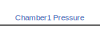
[diagram: root canvas - part 1/20, top center region]
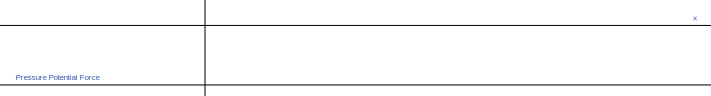
[diagram: root canvas - part 2/20, top left region]
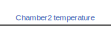
[diagram: root canvas - part 3/20, top center region]
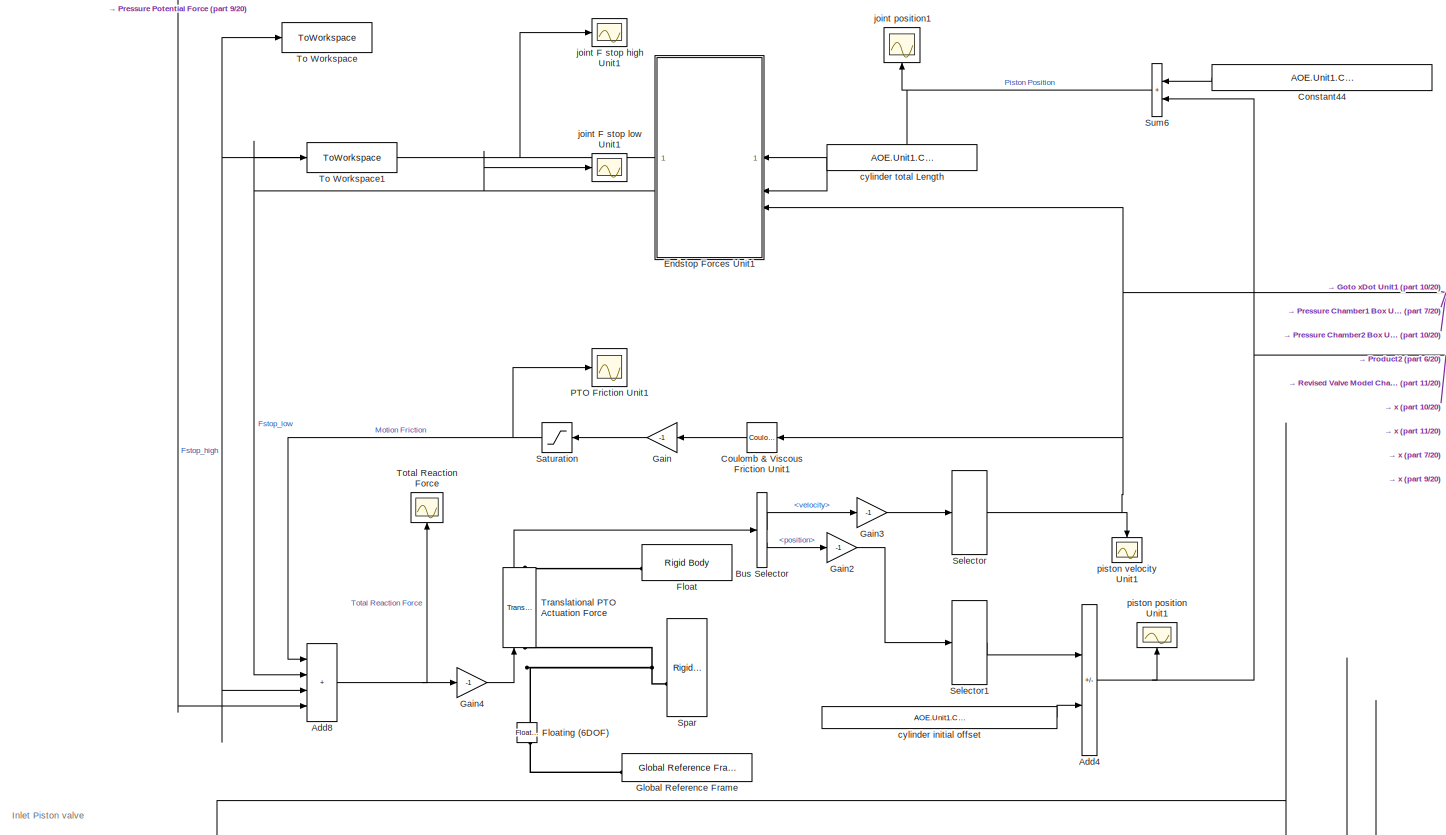
[diagram: root canvas - part 4/20, top left region]
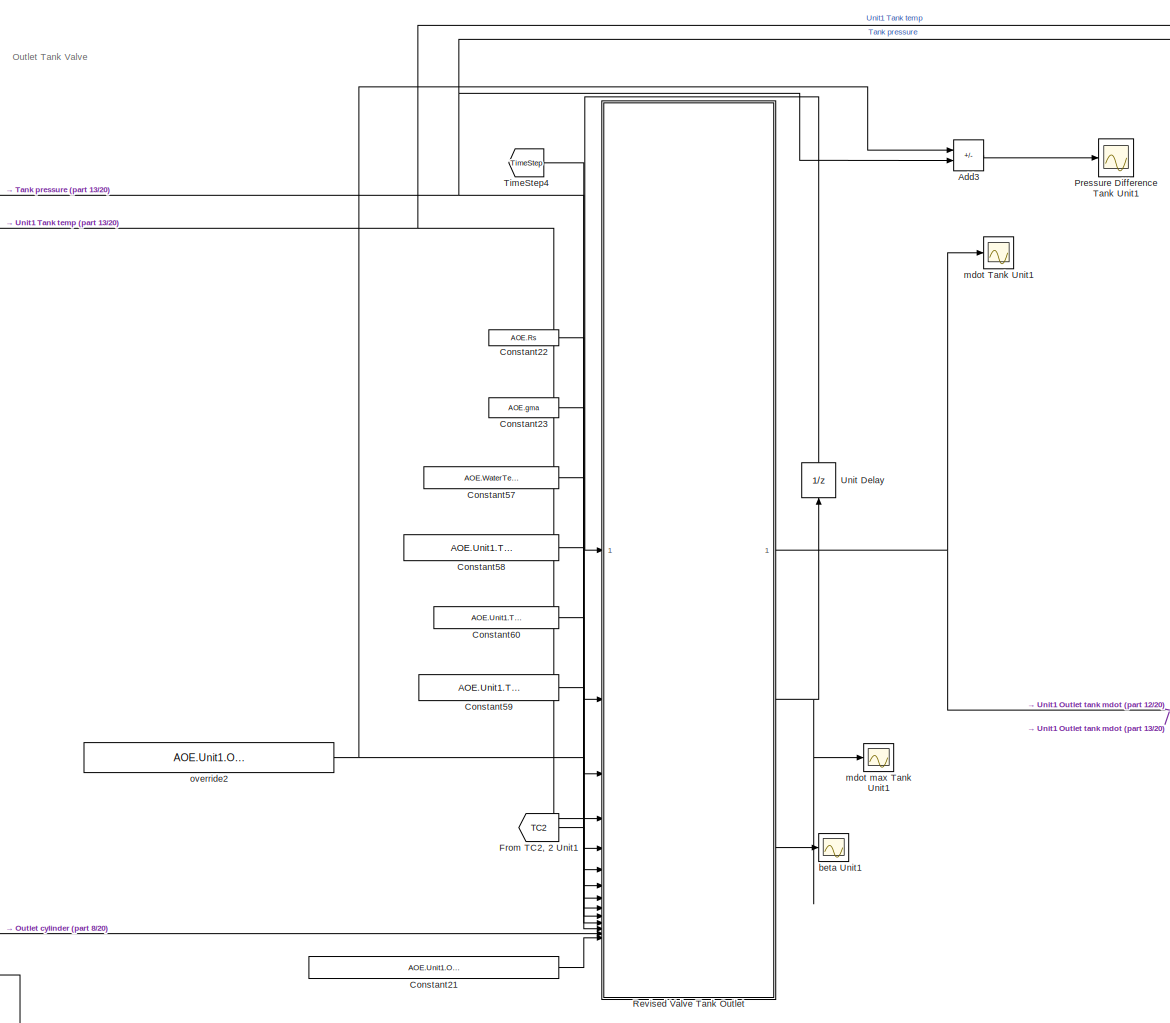
[diagram: root canvas - part 5/20, middle right region]
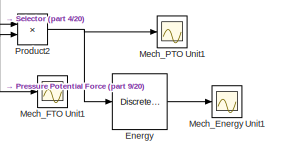
[diagram: root canvas - part 6/20, top center region]
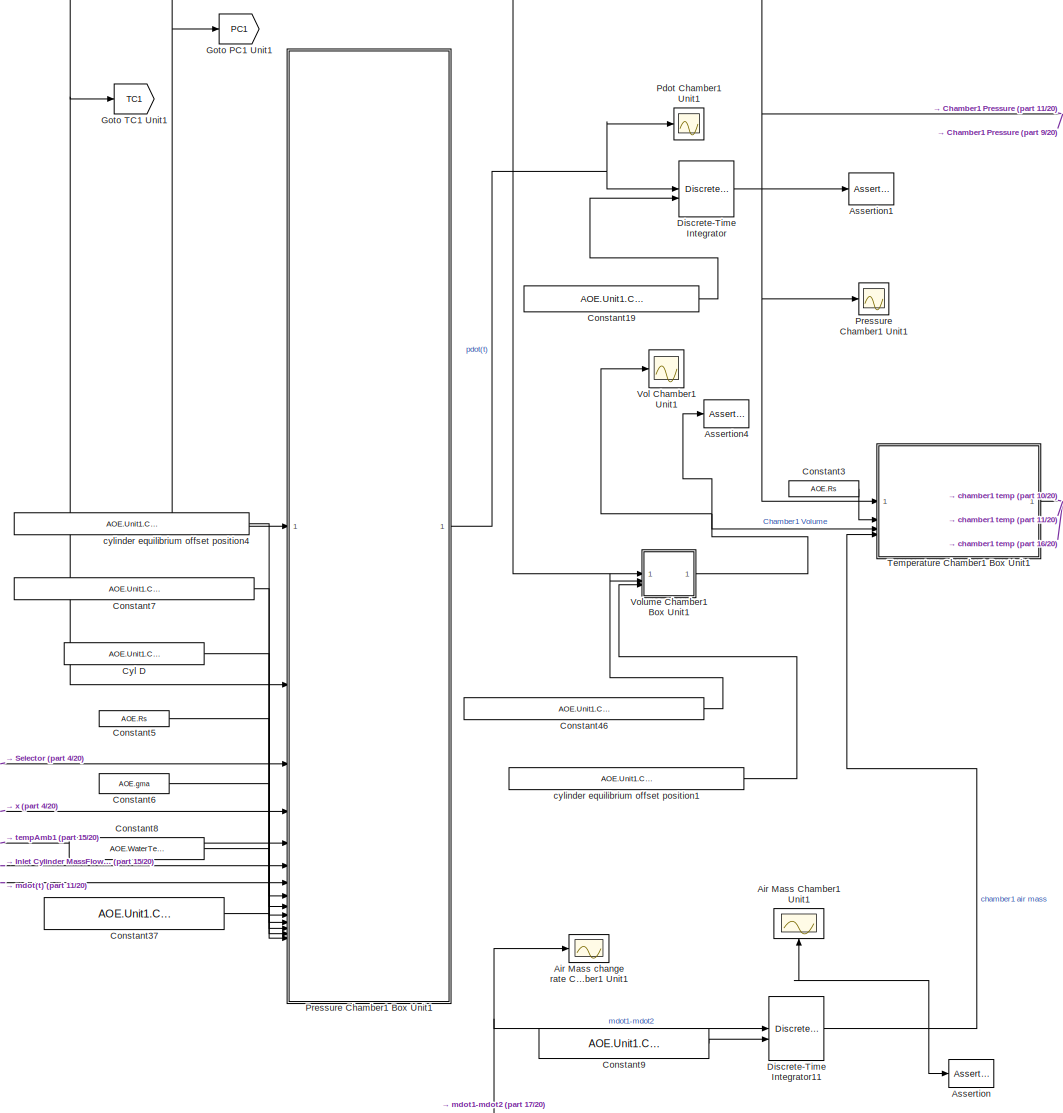
[diagram: root canvas - part 7/20, middle left region]
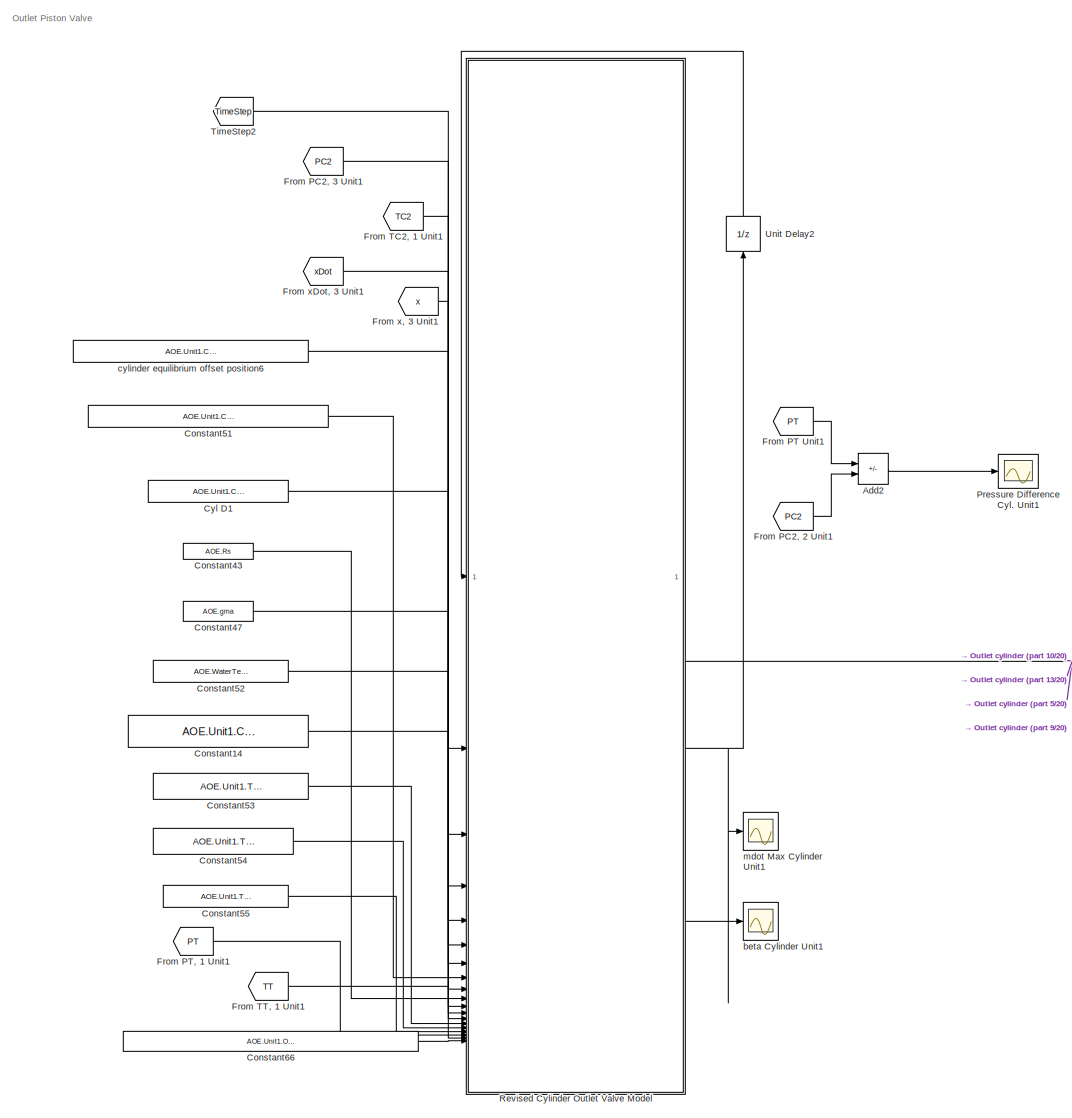
[diagram: root canvas - part 8/20, central region]
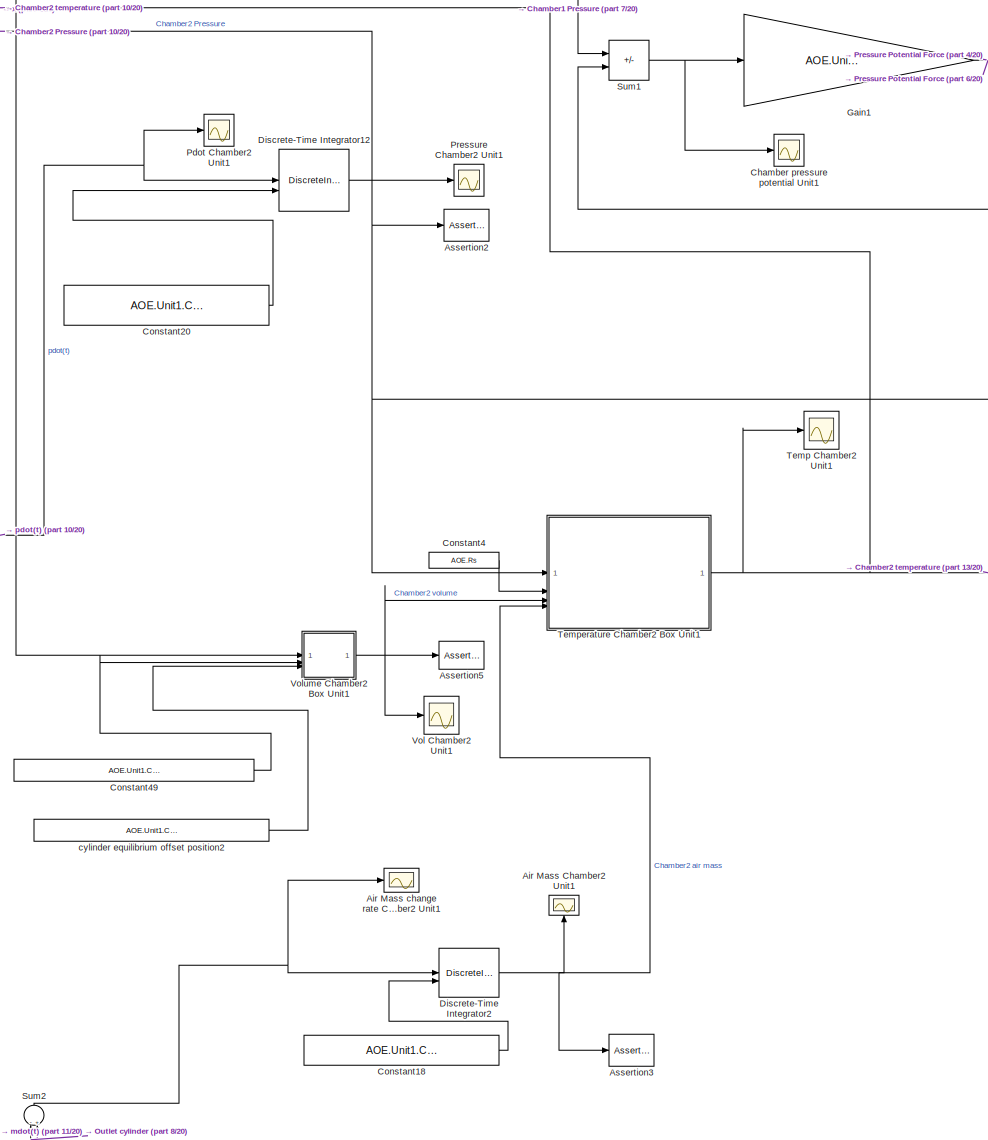
[diagram: root canvas - part 9/20, central region]
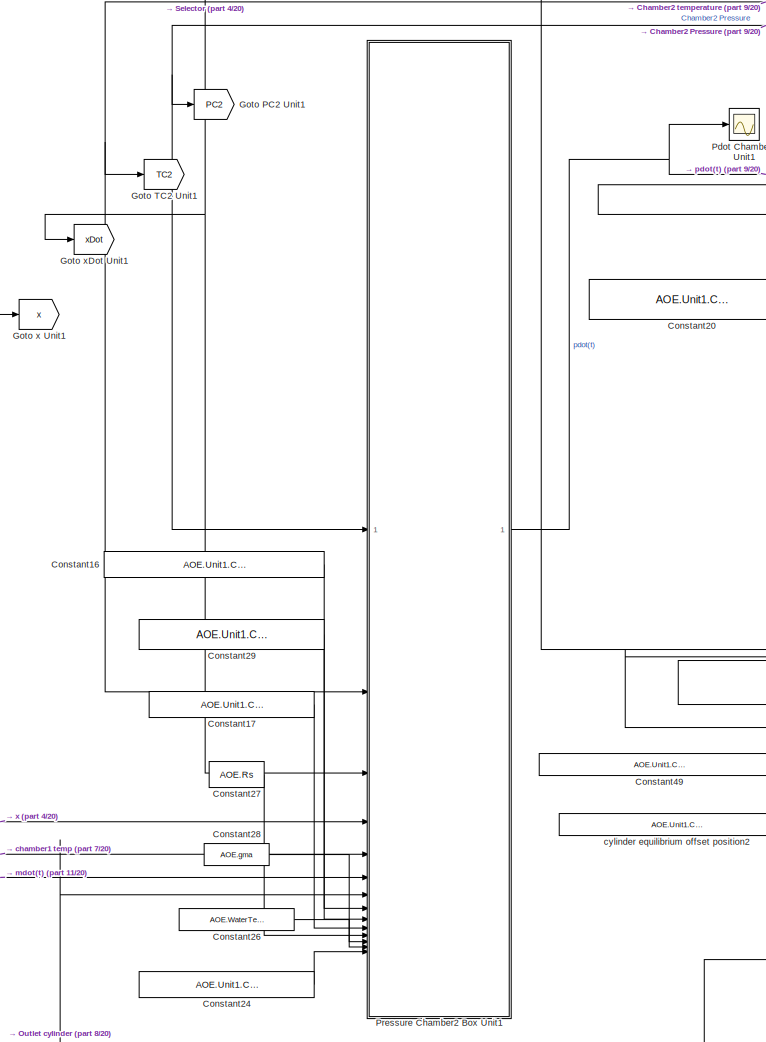
[diagram: root canvas - part 10/20, central region]
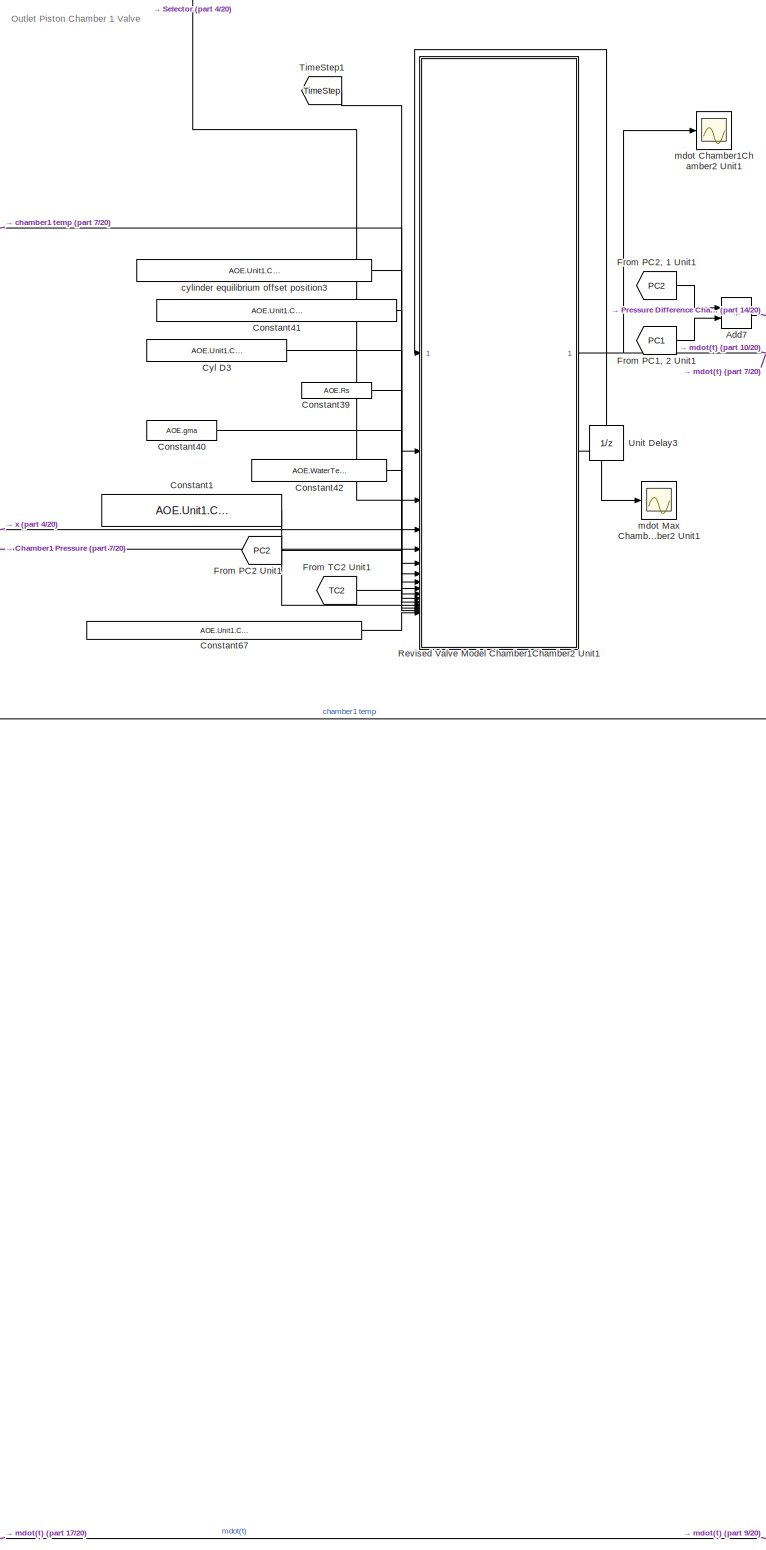
[diagram: root canvas - part 11/20, left side, full height]
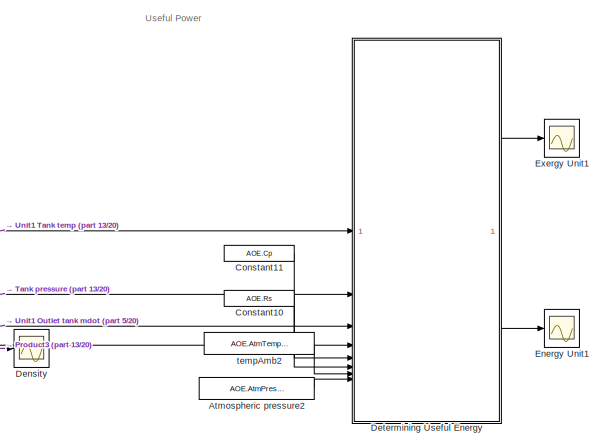
[diagram: root canvas - part 12/20, top right region]
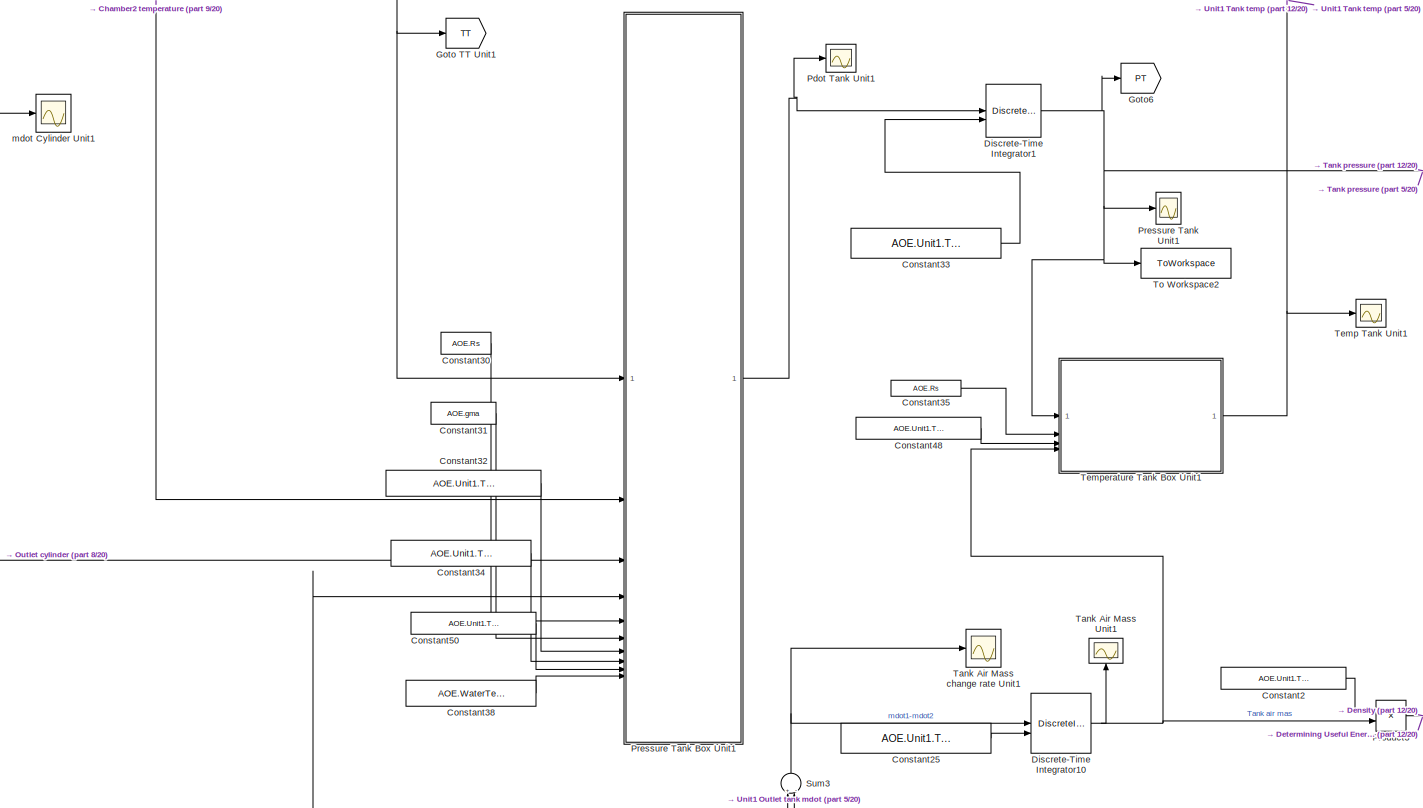
[diagram: root canvas - part 13/20, middle right region]
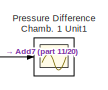
[diagram: root canvas - part 14/20, top center region]
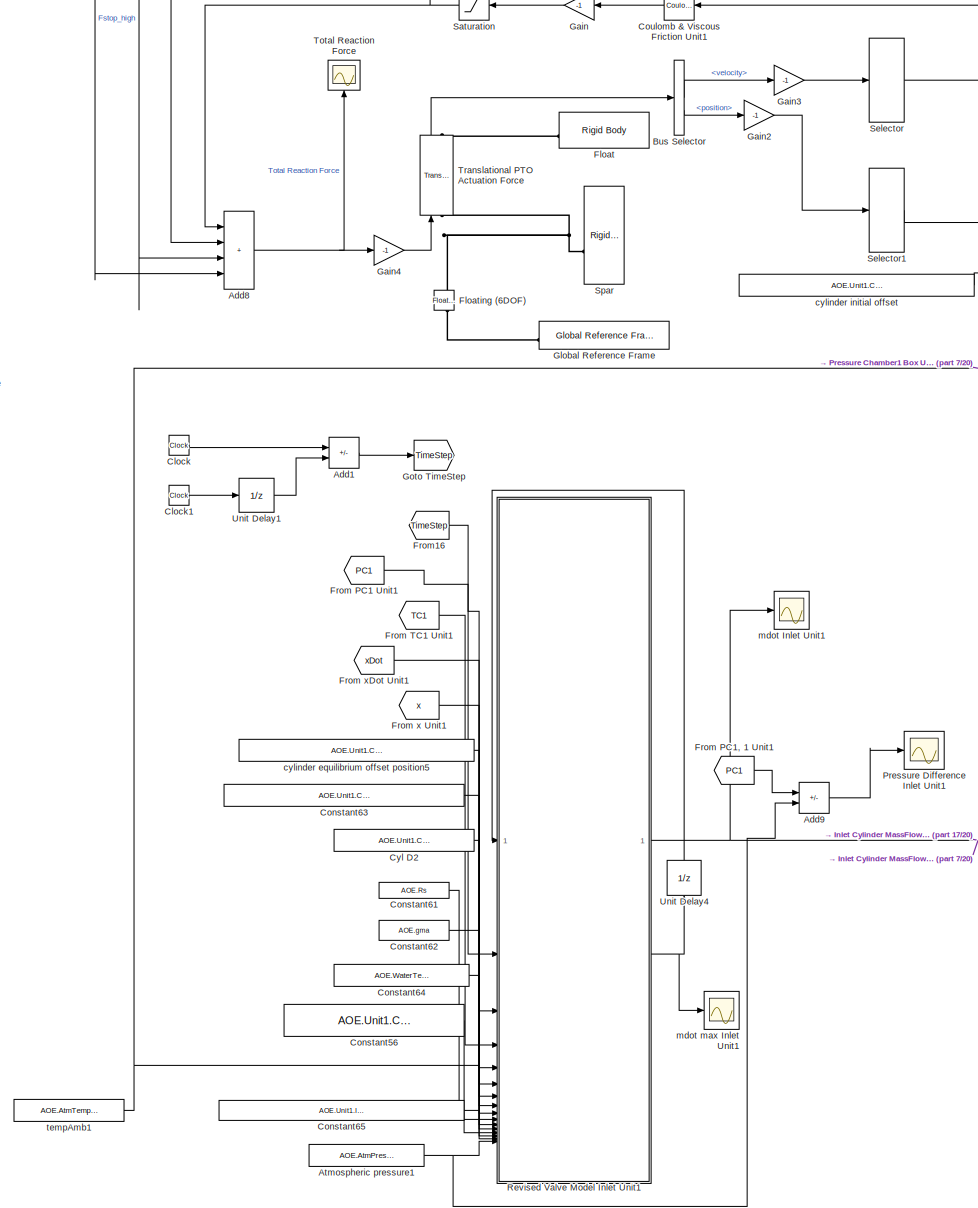
[diagram: root canvas - part 15/20, middle left region]
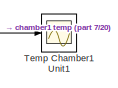
[diagram: root canvas - part 16/20, middle left region]
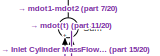
[diagram: root canvas - part 17/20, bottom left region]
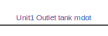
[diagram: root canvas - part 18/20, bottom right region]
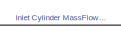
[diagram: root canvas - part 19/20, bottom left region]
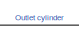
[diagram: root canvas - part 20/20, bottom center region]
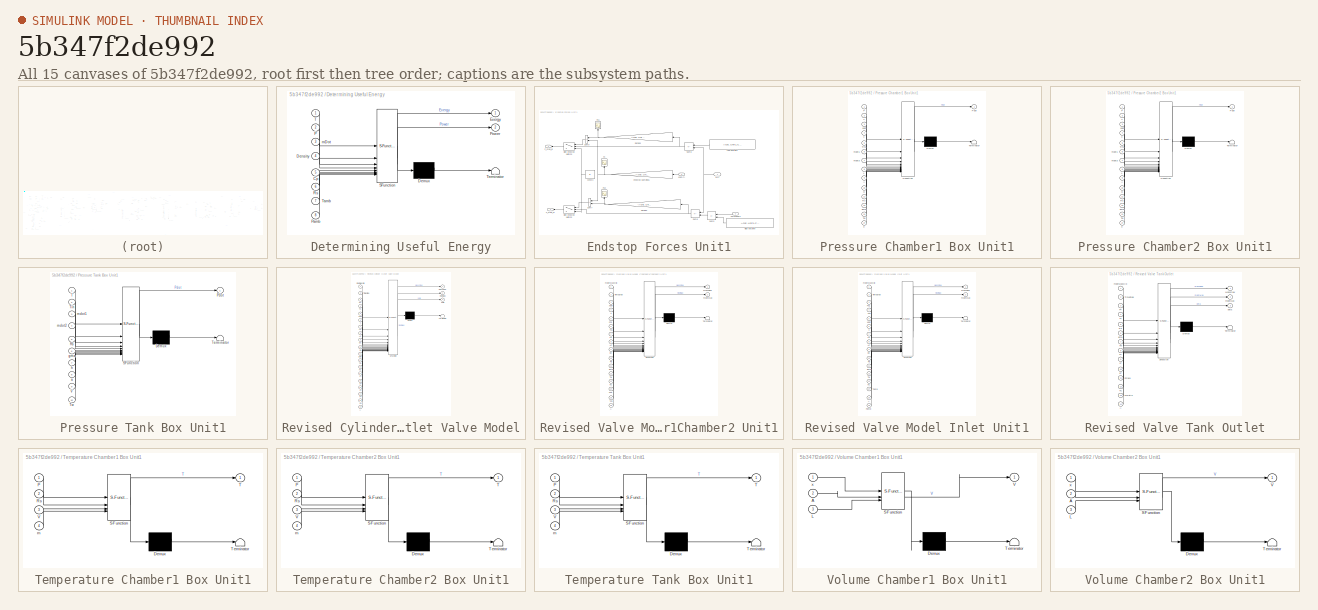
[diagram: thumbnail index - all 15 canvases of the model, root first then tree order]
MODEL slx_5b347f2de992
KIND model
CONFIG AbsTol = auto
CONFIG EnableMultiTasking = off
CONFIG FixedStep = 0.01
CONFIG MaxStep = 0.01
CONFIG MinStep = auto
CONFIG RelTol = 1e-3
CONFIG SampleTimeConstraint = Unconstrained
CONFIG SolverName = ode4
CONFIG StartTime = 0
CONFIG StopTime = 200
BLOCK [Scope]  mdot Tank Unit1
  Floating = off
  NumInputPorts = 1
  ScopeSpecificationString = Simulink.scopes.TimeScopeBlockCfg('CurrentConfiguration', extmgr.ConfigurationSet(extmgr.Configuration('Core','General UI',true,'FigureColor',[0.156862745098039 0.156862745098039 0.156862745098039]),extmgr.Configuration('Core','Source UI',true),extmgr.Configuration('Sources','WiredSimulink',true,'DataLoggingVariableName','mDot_Outlet','DataLoggingSaveFormat','Array','DataLoggingDecimation','1','Da...<+2868ch>
BLOCK [Scope]  mdot max Tank Unit1
  Floating = off
  NumInputPorts = 1
  ScopeSpecificationString = Simulink.scopes.TimeScopeBlockCfg('CurrentConfiguration', extmgr.ConfigurationSet(extmgr.Configuration('Core','General UI',true,'FigureColor',[0.156862745098039 0.156862745098039 0.156862745098039]),extmgr.Configuration('Core','Source UI',true),extmgr.Configuration('Sources','WiredSimulink',true,'DataLoggingVariableName','ScopeData2','DataLoggingSaveFormat','Array','DataLoggingDecimation','1','Dat...<+2879ch>
BLOCK [Sum] Add1
  IconShape = rectangular
  Inputs = +-
BLOCK [Sum] Add2
  IconShape = rectangular
  Inputs = -+
BLOCK [Sum] Add3
  IconShape = rectangular
  Inputs = -+
BLOCK [Sum] Add4
  IconShape = rectangular
  Inputs = +-
  RndMeth = Simplest
BLOCK [Sum] Add7
  IconShape = rectangular
  Inputs = -+
BLOCK [Sum] Add8
  IconShape = rectangular
  Inputs = ++++
  RndMeth = Simplest
BLOCK [Sum] Add9
  IconShape = rectangular
  Inputs = -+
BLOCK [Scope] Air Mass Chamber1 Unit1
  Floating = off
  NameLocation = right
  NumInputPorts = 1
  ScopeSpecificationString = Simulink.scopes.TimeScopeBlockCfg('CurrentConfiguration', extmgr.ConfigurationSet(extmgr.Configuration('Core','General UI',true,'FigureColor',[0.156862745098039 0.156862745098039 0.156862745098039]),extmgr.Configuration('Core','Source UI',true),extmgr.Configuration('Sources','WiredSimulink',true,'DataLoggingVariableName','ScopeData1','DataLoggingDecimation','100','DataLoggingDecimateData',true,'Da...<+2864ch>
BLOCK [Scope] Air Mass Chamber2 Unit1
  Floating = off
  NameLocation = right
  NumInputPorts = 1
  ScopeSpecificationString = Simulink.scopes.TimeScopeBlockCfg('CurrentConfiguration', extmgr.ConfigurationSet(extmgr.Configuration('Core','General UI',true,'FigureColor',[0.156862745098039 0.156862745098039 0.156862745098039]),extmgr.Configuration('Core','Source UI',true),extmgr.Configuration('Sources','WiredSimulink',true,'DataLoggingVariableName','ScopeData2','DataLoggingSaveFormat','Array','DataLoggingDecimation','1','Dat...<+2866ch>
BLOCK [Scope] Air Mass change rate Chamber1 Unit1
  Floating = off
  NumInputPorts = 1
  ScopeSpecificationString = Simulink.scopes.TimeScopeBlockCfg('CurrentConfiguration', extmgr.ConfigurationSet(extmgr.Configuration('Core','General UI',true,'FigureColor',[0.156862745098039 0.156862745098039 0.156862745098039]),extmgr.Configuration('Core','Source UI',true),extmgr.Configuration('Sources','WiredSimulink',true,'DataLoggingVariableName','ScopeData3','DataLoggingSaveFormat','Array','DataLoggingDecimation','1','Dat...<+2837ch>
BLOCK [Scope] Air Mass change rate Chamber2 Unit1
  Floating = off
  NumInputPorts = 1
  ScopeSpecificationString = Simulink.scopes.TimeScopeBlockCfg('CurrentConfiguration', extmgr.ConfigurationSet(extmgr.Configuration('Core','General UI',true,'FigureColor',[0.156862745098039 0.156862745098039 0.156862745098039]),extmgr.Configuration('Core','Source UI',true),extmgr.Configuration('Sources','WiredSimulink',true,'DataLoggingVariableName','ScopeData4','DataLoggingSaveFormat','Array','DataLoggingDecimation','1','Dat...<+2829ch>
BLOCK [Assertion] Assertion
  AssertionFailFcn = Ch1C1 mass is zero
BLOCK [Assertion] Assertion1
  AssertionFailFcn = Ch1C1 pressure is zero
BLOCK [Assertion] Assertion2
  AssertionFailFcn = Ch2C1 pressure is zero
  StopWhenAssertionFail = off
BLOCK [Assertion] Assertion3
  AssertionFailFcn = Ch2C1 mass is zero
BLOCK [Assertion] Assertion4
  AssertionFailFcn = Ch1C1 volume is zero
BLOCK [Assertion] Assertion5
  AssertionFailFcn = Ch2C1 volume is zero
BLOCK [Constant] Atmospheric pressure1
  Value = AOE.AtmPressure
BLOCK [Constant] Atmospheric pressure2
  Value = AOE.AtmPressure
BLOCK [BusSelector] Bus Selector
  OutputSignals = velocity,position
BLOCK [Scope] Chamber pressure potential Unit1
  Floating = off
  NumInputPorts = 1
  ScopeSpecificationString = Simulink.scopes.TimeScopeBlockCfg('CurrentConfiguration', extmgr.ConfigurationSet(extmgr.Configuration('Core','General UI',true,'FigureColor',[0.156862745098039 0.156862745098039 0.156862745098039]),extmgr.Configuration('Core','Source UI',true),extmgr.Configuration('Sources','WiredSimulink',true,'DataLoggingVariableName','ScopeData5','DataLoggingSaveFormat','Array','DataLoggingDecimation','1','Dat...<+2886ch>
BLOCK [Clock] Clock
BLOCK [Clock] Clock1
BLOCK [Constant] Constant1
  Value = AOE.Unit1.Cylinder.HeatConvection
BLOCK [Constant] Constant10
  Value = AOE.Rs
BLOCK [Constant] Constant11
  Value = AOE.Cp
BLOCK [Constant] Constant14
  Value = AOE.Unit1.Cylinder.HeatConvection
BLOCK [Constant] Constant16
  Value = AOE.Unit1.Chamber2.InitialPistonPosition
BLOCK [Constant] Constant17
  Value = AOE.Unit1.Cylinder.Diameter
BLOCK [Constant] Constant18
  Value = AOE.Unit1.Chamber2.InitialAirMass
BLOCK [Constant] Constant19
  Value = AOE.Unit1.Chamber1.InitialPressure
BLOCK [Constant] Constant2
  Value = AOE.Unit1.Tank.Volume
BLOCK [Constant] Constant20
  Value = AOE.Unit1.Chamber2.InitialPressure
BLOCK [Constant] Constant21
  Value = AOE.Unit1.OutletTankOrifice.CrossSectionalArea
BLOCK [Constant] Constant22
  Value = AOE.Rs
BLOCK [Constant] Constant23
  Value = AOE.gma
BLOCK [Constant] Constant24
  Value = AOE.Unit1.Cylinder.HeatConvection
BLOCK [Constant] Constant25
  Value = AOE.Unit1.Tank.InitialAirMass
BLOCK [Constant] Constant26
  Value = AOE.WaterTemperature
BLOCK [Constant] Constant27
  Value = AOE.Rs
BLOCK [Constant] Constant28
  Value = AOE.gma
BLOCK [Constant] Constant29
  Value = AOE.Unit1.Cylinder.CrossSectionalArea
BLOCK [Constant] Constant3
  Value = AOE.Rs
BLOCK [Constant] Constant30
  Value = AOE.Rs
BLOCK [Constant] Constant31
  Value = AOE.gma
BLOCK [Constant] Constant32
  Value = AOE.Unit1.Tank.HeatConvection
BLOCK [Constant] Constant33
  Value = AOE.Unit1.Tank.InitialPressure
BLOCK [Constant] Constant34
  Value = AOE.Unit1.Tank.SurfaceArea
BLOCK [Constant] Constant35
  Value = AOE.Rs
BLOCK [Constant] Constant37
  Value = AOE.Unit1.Cylinder.HeatConvection
BLOCK [Constant] Constant38
  Value = AOE.WaterTemperature
BLOCK [Constant] Constant39
  Value = AOE.Rs
BLOCK [Constant] Constant4
  Value = AOE.Rs
BLOCK [Constant] Constant40
  Value = AOE.gma
BLOCK [Constant] Constant41
  Value = AOE.Unit1.Cylinder.CrossSectionalArea
BLOCK [Constant] Constant42
  Value = AOE.WaterTemperature
BLOCK [Constant] Constant43
  Value = AOE.Rs
BLOCK [Constant] Constant44
  Value = AOE.Unit1.Chamber2.InitialPistonPosition
BLOCK [Constant] Constant46
  Value = AOE.Unit1.Cylinder.CrossSectionalArea
BLOCK [Constant] Constant47
  Value = AOE.gma
BLOCK [Constant] Constant48
  Value = AOE.Unit1.Tank.Volume
BLOCK [Constant] Constant49
  Value = AOE.Unit1.Cylinder.CrossSectionalArea
BLOCK [Constant] Constant5
  Value = AOE.Rs
BLOCK [Constant] Constant50
  Value = AOE.Unit1.Tank.Volume
BLOCK [Constant] Constant51
  Value = AOE.Unit1.Cylinder.CrossSectionalArea
BLOCK [Constant] Constant52
  Value = AOE.WaterTemperature
BLOCK [Constant] Constant53
  Value = AOE.Unit1.Tank.HeatConvection
BLOCK [Constant] Constant54
  Value = AOE.Unit1.Tank.SurfaceArea
BLOCK [Constant] Constant55
  Value = AOE.Unit1.Tank.Volume
BLOCK [Constant] Constant56
  Value = AOE.Unit1.Cylinder.HeatConvection
BLOCK [Constant] Constant57
  Value = AOE.WaterTemperature
BLOCK [Constant] Constant58
  Value = AOE.Unit1.Tank.HeatConvection
BLOCK [Constant] Constant59
  Value = AOE.Unit1.Tank.SurfaceArea
BLOCK [Constant] Constant6
  Value = AOE.gma
BLOCK [Constant] Constant60
  Value = AOE.Unit1.Tank.Volume
BLOCK [Constant] Constant61
  Value = AOE.Rs
BLOCK [Constant] Constant62
  Value = AOE.gma
BLOCK [Constant] Constant63
  Value = AOE.Unit1.Cylinder.CrossSectionalArea
BLOCK [Constant] Constant64
  Value = AOE.WaterTemperature
BLOCK [Constant] Constant65
  Value = AOE.Unit1.InletCylinderOrifice.CrossSectionalArea
BLOCK [Constant] Constant66
  Value = AOE.Unit1.OutletCylinderOrifice.CrossSectionalArea
BLOCK [Constant] Constant67
  Value = AOE.Unit1.Chamber1Chamber2Orifice.CrossSectionalArea
BLOCK [Constant] Constant7
  Value = AOE.Unit1.Cylinder.CrossSectionalArea
BLOCK [Constant] Constant8
  Value = AOE.WaterTemperature
BLOCK [Constant] Constant9
  Value = AOE.Unit1.Chamber1.InitialAirMass
BLOCK [Reference] Coulomb & Viscous Friction Unit1  REF=simulink/Discontinuities/Coulomb &
Viscous Friction
  SourceBlock = simulink/Discontinuities/Coulomb &\nViscous Friction
  SourceType = Coulombic and Viscous Friction
BLOCK [Constant] Cyl D
  Value = AOE.Unit1.Cylinder.Diameter
BLOCK [Constant] Cyl D1
  Value = AOE.Unit1.Cylinder.Diameter
BLOCK [Constant] Cyl D2
  Value = AOE.Unit1.Cylinder.Diameter
BLOCK [Constant] Cyl D3
  Value = AOE.Unit1.Cylinder.Diameter
BLOCK [Scope] Density
  Floating = off
  NumInputPorts = 1
  ScopeSpecificationString = Simulink.scopes.TimeScopeBlockCfg('CurrentConfiguration', extmgr.ConfigurationSet(extmgr.Configuration('Core','General UI',true,'FigureColor',[0.156862745098039 0.156862745098039 0.156862745098039]),extmgr.Configuration('Core','Source UI',true),extmgr.Configuration('Sources','WiredSimulink',true,'DataLoggingVariableName','Density_Outlet','DataLoggingSaveFormat','Array','DataLoggingDecimation','1',...<+2858ch>
BLOCK [SubSystem] Determining Useful Energy
  ErrorFcn = Stateflow.Translate.translate
  MinAlgLoopOccurrences = on
  PermitHierarchicalResolution = ExplicitOnly
  SFBlockType = MATLAB Function
BLOCK [Demux] Determining Useful Energy/ Demux 
  Outputs = 1
BLOCK [S-Function] Determining Useful Energy/ SFunction 
  EnableBusSupport = on
  FunctionName = sf_sfun
  PortCounts = [8 3]
  SFcnIsStateOwnerBlock = off
  SFunctionDeploymentMode = off
  Tag = Stateflow S-Function 1
BLOCK [Terminator] Determining Useful Energy/ Terminator 
BLOCK [Inport] Determining Useful Energy/Cp
  Port = 5
BLOCK [Inport] Determining Useful Energy/Density
  Port = 4
BLOCK [Outport] Determining Useful Energy/Exergy
BLOCK [Inport] Determining Useful Energy/P
  Port = 2
BLOCK [Inport] Determining Useful Energy/Pamb
  Port = 8
BLOCK [Outport] Determining Useful Energy/Power
  Port = 2
BLOCK [Inport] Determining Useful Energy/Rs
  Port = 6
BLOCK [Inport] Determining Useful Energy/T
BLOCK [Inport] Determining Useful Energy/Tamb
  Port = 7
BLOCK [Inport] Determining Useful Energy/mDot
  Port = 3
BLOCK [DiscreteIntegrator] Discrete-Time Integrator
  ICPrevOutput = DiscIntNeverNeededParam
  ICPrevScaledInput = DiscIntNeverNeededParam
  InitialCondition = 101.3
  InitialConditionSetting = Auto
  InitialConditionSource = external
  LimitOutput = on
  LowerSaturationLimit = 0
  SampleTime = -1
BLOCK [DiscreteIntegrator] Discrete-Time Integrator1
  ICPrevOutput = DiscIntNeverNeededParam
  ICPrevScaledInput = DiscIntNeverNeededParam
  InitialCondition = 101.3
  InitialConditionSetting = Auto
  InitialConditionSource = external
  LimitOutput = on
  LowerSaturationLimit = 0
  SampleTime = -1
BLOCK [DiscreteIntegrator] Discrete-Time Integrator10
  ICPrevOutput = DiscIntNeverNeededParam
  ICPrevScaledInput = DiscIntNeverNeededParam
  InitialCondition = 1.2754*(10)*.25*pi*0.5^2
  InitialConditionSetting = Auto
  InitialConditionSource = external
  LimitOutput = on
  LowerSaturationLimit = 0
  SampleTime = -1
BLOCK [DiscreteIntegrator] Discrete-Time Integrator11
  ICPrevOutput = DiscIntNeverNeededParam
  ICPrevScaledInput = DiscIntNeverNeededParam
  InitialCondition = 1.2754*(2+.05)*.25*pi*2.14^2
  InitialConditionSetting = Auto
  InitialConditionSource = external
  LimitOutput = on
  LowerSaturationLimit = 0
  SampleTime = -1
BLOCK [DiscreteIntegrator] Discrete-Time Integrator12
  ICPrevOutput = DiscIntNeverNeededParam
  ICPrevScaledInput = DiscIntNeverNeededParam
  InitialCondition = 101.3
  InitialConditionSetting = Auto
  InitialConditionSource = external
  LimitOutput = on
  LowerSaturationLimit = 0
  SampleTime = -1
BLOCK [DiscreteIntegrator] Discrete-Time Integrator2
  ICPrevOutput = DiscIntNeverNeededParam
  ICPrevScaledInput = DiscIntNeverNeededParam
  InitialCondition = 1.2754*(2+.05)*.25*pi*2.14^2
  InitialConditionSetting = Auto
  InitialConditionSource = external
  LimitOutput = on
  LowerSaturationLimit = 0
  NameLocation = top
  SampleTime = -1
BLOCK [SubSystem] Endstop Forces Unit1
BLOCK [Outport] Endstop Forces Unit1/F_stop_hi
  NameLocation = top
BLOCK [Outport] Endstop Forces Unit1/F_stop_lo
  NameLocation = top
  Port = 2
BLOCK [Scope] Endstop Forces Unit1/Fc
  Floating = off
  NameLocation = left
  NumInputPorts = 1
  ScopeSpecificationString = Simulink.scopes.TimeScopeBlockCfg('CurrentConfiguration', extmgr.ConfigurationSet(extmgr.Configuration('Core','General UI',true,'FigureColor',[0.156862745098039 0.156862745098039 0.156862745098039]),extmgr.Configuration('Core','Source UI',true),extmgr.Configuration('Sources','WiredSimulink',true,'DataLoggingVariableName','ScopeData2','DataLoggingSaveFormat','Array','DataLoggingDecimation','1','Dat...<+2897ch>
BLOCK [Scope] Endstop Forces Unit1/Fk1
  Floating = off
  NameLocation = left
  NumInputPorts = 1
  ScopeSpecificationString = Simulink.scopes.TimeScopeBlockCfg('CurrentConfiguration', extmgr.ConfigurationSet(extmgr.Configuration('Core','General UI',true,'FigureColor',[0.156862745098039 0.156862745098039 0.156862745098039]),extmgr.Configuration('Core','Source UI',true),extmgr.Configuration('Sources','WiredSimulink',true,'DataLoggingVariableName','ScopeData1','DataLoggingSaveFormat','Array','DataLoggingDecimation','1','Dat...<+2918ch>
BLOCK [Scope] Endstop Forces Unit1/Fk2
  Floating = off
  NameLocation = left
  NumInputPorts = 1
  ScopeSpecificationString = Simulink.scopes.TimeScopeBlockCfg('CurrentConfiguration', extmgr.ConfigurationSet(extmgr.Configuration('Core','General UI',true,'FigureColor',[0.156862745098039 0.156862745098039 0.156862745098039]),extmgr.Configuration('Core','Source UI',true),extmgr.Configuration('Sources','WiredSimulink',true,'DataLoggingVariableName','ScopeData3','DataLoggingSaveFormat','Array','DataLoggingDecimation','1','Dat...<+2905ch>
BLOCK [Constant] Endstop Forces Unit1/High end limit
  Value = AOE.Unit1.Cylinder.HighEndLimit
BLOCK [Switch] Endstop Forces Unit1/High endstop switch2
  InputSameDT = off
  SaturateOnIntegerOverflow = off
BLOCK [Switch] Endstop Forces Unit1/High endstop switch3
  InputSameDT = off
  NameLocation = top
  SaturateOnIntegerOverflow = off
BLOCK [Constant] Endstop Forces Unit1/Low end limit
  Value = AOE.Unit1.Cylinder.LowEndLimit
BLOCK [Gain] Endstop Forces Unit1/Spring2
  Gain = -AOE.Unit1.Cylinder.EndStopStiffness
BLOCK [Gain] Endstop Forces Unit1/Spring3
  Gain = AOE.Unit1.Cylinder.EndStopStiffness
BLOCK [Sum] Endstop Forces Unit1/Sum5
  IconShape = rectangular
  Inputs = +-
BLOCK [Sum] Endstop Forces Unit1/Sum6
  IconShape = rectangular
  Inputs = +-
BLOCK [Sum] Endstop Forces Unit1/Sum7
  IconShape = rectangular
BLOCK [Sum] Endstop Forces Unit1/Sum8
  IconShape = rectangular
  Inputs = +-
BLOCK [Sum] Endstop Forces Unit1/Sum9
  IconShape = rectangular
BLOCK [Inport] Endstop Forces Unit1/Total length
  NameLocation = top
  Port = 2
BLOCK [Constant] Endstop Forces Unit1/const3
  Value = 0
BLOCK [Gain] Endstop Forces Unit1/endstop damping1
  Gain = -AOE.Unit1.Cylinder.EndStopDamping
BLOCK [Inport] Endstop Forces Unit1/x(t)
  NameLocation = top
BLOCK [Inport] Endstop Forces Unit1/xdot(t)
  NameLocation = top
  Port = 3
BLOCK [DiscreteIntegrator] Energy
  ICPrevOutput = DiscIntNeverNeededParam
  ICPrevScaledInput = DiscIntNeverNeededParam
  InitialConditionSetting = Auto
  LimitOutput = on
  SampleTime = -1
BLOCK [Scope] Energy Unit1
  Floating = off
  NumInputPorts = 1
  ScopeSpecificationString = Simulink.scopes.TimeScopeBlockCfg('CurrentConfiguration', extmgr.ConfigurationSet(extmgr.Configuration('Core','General UI',true,'FigureColor',[0.156862745098039 0.156862745098039 0.156862745098039]),extmgr.Configuration('Core','Source UI',true),extmgr.Configuration('Sources','WiredSimulink',true,'DataLoggingVariableName','Energy_Output','DataLoggingSaveFormat','Array','DataLoggingDecimation','1','...<+2878ch>
BLOCK [Scope] Exergy Unit1
  Floating = off
  NumInputPorts = 1
  ScopeSpecificationString = Simulink.scopes.TimeScopeBlockCfg('CurrentConfiguration', extmgr.ConfigurationSet(extmgr.Configuration('Core','General UI',true,'FigureColor',[0.156862745098039 0.156862745098039 0.156862745098039]),extmgr.Configuration('Core','Source UI',true),extmgr.Configuration('Sources','WiredSimulink',true,'DataLoggingVariableName','Exergy_Output','DataLoggingSaveFormat','Array','DataLoggingDecimation','1','...<+2911ch>
BLOCK [Reference] Float  REF=WECSim_Lib_Body_Elements/Rigid Body
  AttributesFormatString = %<body>
  SourceBlock = WECSim_Lib_Body_Elements/Rigid Body
  SourceType = Rigid Body
BLOCK [Reference] Floating (6DOF)  REF=WECSim_Lib_Constraints/Floating (6DOF)
  AttributesFormatString = %<constraint>
  NameLocation = right
  SourceBlock = WECSim_Lib_Constraints/Floating (6DOF)
  SourceType = Constraints
BLOCK [From] From PC1 Unit1
  GotoTag = PC1
BLOCK [From] From PC1, 1 Unit1
  GotoTag = PC1
BLOCK [From] From PC1, 2 Unit1
  GotoTag = PC1
BLOCK [From] From PC2 Unit1
  GotoTag = PC2
BLOCK [From] From PC2, 1 Unit1
  GotoTag = PC2
BLOCK [From] From PC2, 2 Unit1
  GotoTag = PC2
BLOCK [From] From PC2, 3 Unit1
  GotoTag = PC2
BLOCK [From] From PT Unit1
  GotoTag = PT
BLOCK [From] From PT, 1 Unit1
  GotoTag = PT
BLOCK [From] From TC1 Unit1
  GotoTag = TC1
BLOCK [From] From TC2 Unit1
  GotoTag = TC2
BLOCK [From] From TC2, 1 Unit1
  GotoTag = TC2
BLOCK [From] From TC2, 2 Unit1
  GotoTag = TC2
BLOCK [From] From TT, 1 Unit1
  GotoTag = TT
BLOCK [From] From x Unit1
  GotoTag = x
BLOCK [From] From x, 3 Unit1
  GotoTag = x
BLOCK [From] From xDot Unit1
  GotoTag = xDot
BLOCK [From] From xDot, 3 Unit1
  GotoTag = xDot
BLOCK [From] From16
  GotoTag = TimeStep
BLOCK [Gain] Gain
  Gain = -1
BLOCK [Gain] Gain1
  Gain = AOE.Unit1.Cylinder.CrossSectionalArea
BLOCK [Gain] Gain2
  Gain = -1
BLOCK [Gain] Gain3
  Gain = -1
BLOCK [Gain] Gain4
  Gain = -1
BLOCK [Reference] Global Reference Frame  REF=WECSim_Lib_Frames/Global Reference Frame
  SourceBlock = WECSim_Lib_Frames/Global Reference Frame
  SourceProductName = WEC-Sim
  SourceType = Frames
BLOCK [Goto] Goto PC1 Unit1
  GotoTag = PC1
BLOCK [Goto] Goto PC2 Unit1
  GotoTag = PC2
BLOCK [Goto] Goto TC1 Unit1
  GotoTag = TC1
BLOCK [Goto] Goto TC2 Unit1
  GotoTag = TC2
BLOCK [Goto] Goto TT Unit1
  GotoTag = TT
BLOCK [Goto] Goto TimeStep
  GotoTag = TimeStep
BLOCK [Goto] Goto x Unit1
  GotoTag = x
BLOCK [Goto] Goto xDot Unit1
  GotoTag = xDot
BLOCK [Goto] Goto6
  GotoTag = PT
BLOCK [Scope] Mech_Energy Unit1
  Floating = off
  NumInputPorts = 1
  ScopeSpecificationString = Simulink.scopes.TimeScopeBlockCfg('CurrentConfiguration', extmgr.ConfigurationSet(extmgr.Configuration('Core','General UI',true,'FigureColor',[0.156862745098039 0.156862745098039 0.156862745098039]),extmgr.Configuration('Core','Source UI',true),extmgr.Configuration('Sources','WiredSimulink',true,'DataLoggingVariableName','ScopeData8','DataLoggingLimitDataPoints',true,'DataLoggingSaveFormat','Array...<+2880ch>
BLOCK [Scope] Mech_FTO Unit1
  Floating = off
  NumInputPorts = 1
  ScopeSpecificationString = Simulink.scopes.TimeScopeBlockCfg('CurrentConfiguration', extmgr.ConfigurationSet(extmgr.Configuration('Core','General UI',true,'FigureColor',[0.156862745098039 0.156862745098039 0.156862745098039]),extmgr.Configuration('Core','Source UI',true),extmgr.Configuration('Sources','WiredSimulink',true,'DataLoggingVariableName','F_PTO','DataLoggingSaveFormat','Array','DataLoggingDecimation','1','DataLogg...<+2897ch>
BLOCK [Scope] Mech_PTO Unit1
  Floating = off
  NumInputPorts = 1
  ScopeSpecificationString = Simulink.scopes.TimeScopeBlockCfg('CurrentConfiguration', extmgr.ConfigurationSet(extmgr.Configuration('Core','General UI',true,'FigureColor',[0.156862745098039 0.156862745098039 0.156862745098039]),extmgr.Configuration('Core','Source UI',true),extmgr.Configuration('Sources','WiredSimulink',true,'DataLoggingVariableName','ScopeData10','DataLoggingSaveFormat','Array','DataLoggingDecimation','1','Da...<+2851ch>
BLOCK [Scope] PTO Friction Unit1
  Floating = off
  NumInputPorts = 1
  ScopeSpecificationString = Simulink.scopes.TimeScopeBlockCfg('CurrentConfiguration', extmgr.ConfigurationSet(extmgr.Configuration('Core','General UI',true,'FigureColor',[0.156862745098039 0.156862745098039 0.156862745098039]),extmgr.Configuration('Core','Source UI',true),extmgr.Configuration('Sources','WiredSimulink',true,'DataLoggingVariableName','F_Friction','DataLoggingSaveFormat','Array','DataLoggingDecimation','1','Dat...<+2853ch>
BLOCK [Scope] Pdot Chamber1 Unit1
  Floating = off
  NameLocation = top
  NumInputPorts = 1
  ScopeSpecificationString = Simulink.scopes.TimeScopeBlockCfg('CurrentConfiguration', extmgr.ConfigurationSet(extmgr.Configuration('Core','General UI',true,'FigureColor',[0.156862745098039 0.156862745098039 0.156862745098039]),extmgr.Configuration('Core','Source UI',true),extmgr.Configuration('Sources','WiredSimulink',true,'DataLoggingVariableName','ScopeData12','DataLoggingSaveFormat','Array','DataLoggingDecimation','1','Da...<+2850ch>
BLOCK [Scope] Pdot Chamber2 Unit1
  Floating = off
  NameLocation = top
  NumInputPorts = 1
  ScopeSpecificationString = Simulink.scopes.TimeScopeBlockCfg('CurrentConfiguration', extmgr.ConfigurationSet(extmgr.Configuration('Core','General UI',true,'FigureColor',[0.156862745098039 0.156862745098039 0.156862745098039]),extmgr.Configuration('Core','Source UI',true),extmgr.Configuration('Sources','WiredSimulink',true,'DataLoggingVariableName','ScopeData13','DataLoggingSaveFormat','Array','DataLoggingDecimation','1','Da...<+2850ch>
BLOCK [Scope] Pdot Tank Unit1
  Floating = off
  NumInputPorts = 1
  ScopeSpecificationString = Simulink.scopes.TimeScopeBlockCfg('CurrentConfiguration', extmgr.ConfigurationSet(extmgr.Configuration('Core','General UI',true,'FigureColor',[0.156862745098039 0.156862745098039 0.156862745098039]),extmgr.Configuration('Core','Source UI',true),extmgr.Configuration('Sources','WiredSimulink',true,'DataLoggingVariableName','PdotTank','DataLoggingSaveFormat','Array','DataLoggingDecimation','1','DataL...<+2880ch>
BLOCK [SubSystem] Pressure Chamber1 Box Unit1
  ErrorFcn = Stateflow.Translate.translate
  MinAlgLoopOccurrences = on
  PermitHierarchicalResolution = ExplicitOnly
  SFBlockType = MATLAB Function
BLOCK [Demux] Pressure Chamber1 Box Unit1/ Demux 
  Outputs = 1
BLOCK [S-Function] Pressure Chamber1 Box Unit1/ SFunction 
  EnableBusSupport = on
  FunctionName = sf_sfun
  PortCounts = [14 2]
  SFcnIsStateOwnerBlock = off
  SFunctionDeploymentMode = off
  Tag = Stateflow S-Function 16
BLOCK [Terminator] Pressure Chamber1 Box Unit1/ Terminator 
BLOCK [Inport] Pressure Chamber1 Box Unit1/A
  Port = 9
BLOCK [Inport] Pressure Chamber1 Box Unit1/D
  Port = 10
BLOCK [Inport] Pressure Chamber1 Box Unit1/L
  Port = 8
BLOCK [Inport] Pressure Chamber1 Box Unit1/P
BLOCK [Outport] Pressure Chamber1 Box Unit1/Pdot
BLOCK [Inport] Pressure Chamber1 Box Unit1/Rs
  Port = 11
BLOCK [Inport] Pressure Chamber1 Box Unit1/T
  Port = 2
BLOCK [Inport] Pressure Chamber1 Box Unit1/Tin1
  Port = 5
BLOCK [Inport] Pressure Chamber1 Box Unit1/Tw
  Port = 13
BLOCK [Inport] Pressure Chamber1 Box Unit1/gma
  Port = 12
BLOCK [Inport] Pressure Chamber1 Box Unit1/h
  Port = 14
BLOCK [Inport] Pressure Chamber1 Box Unit1/mdot1
  Port = 6
BLOCK [Inport] Pressure Chamber1 Box Unit1/mdot3
  Port = 7
BLOCK [Inport] Pressure Chamber1 Box Unit1/x
  Port = 4
BLOCK [Inport] Pressure Chamber1 Box Unit1/xdot
  Port = 3
BLOCK [Scope] Pressure Chamber1 Unit1
  Floating = off
  NameLocation = top
  NumInputPorts = 1
  ScopeSpecificationString = Simulink.scopes.TimeScopeBlockCfg('CurrentConfiguration', extmgr.ConfigurationSet(extmgr.Configuration('Core','General UI',true,'FigureColor',[0.156862745098039 0.156862745098039 0.156862745098039]),extmgr.Configuration('Core','Source UI',true),extmgr.Configuration('Sources','WiredSimulink',true,'DataLoggingVariableName','P_C1','DataLoggingSaveFormat','Array','DataLoggingDecimation','1','DataLoggi...<+2897ch>
BLOCK [SubSystem] Pressure Chamber2 Box Unit1
  ErrorFcn = Stateflow.Translate.translate
  PermitHierarchicalResolution = ExplicitOnly
  SFBlockType = MATLAB Function
BLOCK [Demux] Pressure Chamber2 Box Unit1/ Demux 
  Outputs = 1
BLOCK [S-Function] Pressure Chamber2 Box Unit1/ SFunction 
  EnableBusSupport = on
  FunctionName = sf_sfun
  PortCounts = [14 2]
  SFcnIsStateOwnerBlock = off
  SFunctionDeploymentMode = off
  Tag = Stateflow S-Function 3
BLOCK [Terminator] Pressure Chamber2 Box Unit1/ Terminator 
BLOCK [Inport] Pressure Chamber2 Box Unit1/A
  Port = 9
BLOCK [Inport] Pressure Chamber2 Box Unit1/D
  Port = 10
BLOCK [Inport] Pressure Chamber2 Box Unit1/L
  Port = 8
BLOCK [Inport] Pressure Chamber2 Box Unit1/P
BLOCK [Outport] Pressure Chamber2 Box Unit1/Pdot
BLOCK [Inport] Pressure Chamber2 Box Unit1/Rs
  Port = 11
BLOCK [Inport] Pressure Chamber2 Box Unit1/T
  Port = 2
BLOCK [Inport] Pressure Chamber2 Box Unit1/Tin1
  Port = 5
BLOCK [Inport] Pressure Chamber2 Box Unit1/Tw
  Port = 13
BLOCK [Inport] Pressure Chamber2 Box Unit1/gma
  Port = 12
BLOCK [Inport] Pressure Chamber2 Box Unit1/h
  Port = 14
BLOCK [Inport] Pressure Chamber2 Box Unit1/mdot1
  Port = 6
BLOCK [Inport] Pressure Chamber2 Box Unit1/mdot3
  Port = 7
BLOCK [Inport] Pressure Chamber2 Box Unit1/x
  Port = 4
BLOCK [Inport] Pressure Chamber2 Box Unit1/xdot
  Port = 3
BLOCK [Scope] Pressure Chamber2 Unit1
  Floating = off
  NameLocation = top
  NumInputPorts = 1
  ScopeSpecificationString = Simulink.scopes.TimeScopeBlockCfg('CurrentConfiguration', extmgr.ConfigurationSet(extmgr.Configuration('Core','General UI',true,'FigureColor',[0.156862745098039 0.156862745098039 0.156862745098039]),extmgr.Configuration('Core','Source UI',true),extmgr.Configuration('Sources','WiredSimulink',true,'DataLoggingVariableName','P_C2','DataLoggingSaveFormat','Array','DataLoggingDecimation','1','DataLoggi...<+2895ch>
BLOCK [Scope] Pressure Difference Chamb. 1 Unit1
  Floating = off
  NumInputPorts = 1
  ScopeSpecificationString = Simulink.scopes.TimeScopeBlockCfg('CurrentConfiguration', extmgr.ConfigurationSet(extmgr.Configuration('Core','General UI',true,'FigureColor',[0.156862745098039 0.156862745098039 0.156862745098039]),extmgr.Configuration('Core','Source UI',true),extmgr.Configuration('Sources','WiredSimulink',true,'DataLoggingVariableName','deltaP_C1C2','DataLoggingSaveFormat','Array','DataLoggingDecimation','1','Da...<+2844ch>
BLOCK [Scope] Pressure Difference Cyl. Unit1
  Floating = off
  NumInputPorts = 1
  ScopeSpecificationString = Simulink.scopes.TimeScopeBlockCfg('CurrentConfiguration', extmgr.ConfigurationSet(extmgr.Configuration('Core','General UI',true,'FigureColor',[0.156862745098039 0.156862745098039 0.156862745098039]),extmgr.Configuration('Core','Source UI',true),extmgr.Configuration('Sources','WiredSimulink',true,'DataLoggingVariableName','deltaP_C2T','DataLoggingSaveFormat','Array','DataLoggingDecimation','1','Dat...<+2842ch>
BLOCK [Scope] Pressure Difference Inlet Unit1
  Floating = off
  NumInputPorts = 1
  ScopeSpecificationString = C++SS(StrPVP('Location','[496, 472, 1074, 870]'),StrPVP('Open','off'),MxPVP('AxesTitles',54,'struct(''axes1'',''%<SignalLabel>'')'),MxPVP('ScopeGraphics',57,'struct(''FigureColor'',''[0.156862745098039 0.156862745098039 0.156862745098039]'',''AxesColor'',''[0 0 0]'',''AxesTickColor'',''[0.686274509803922 0.686274509803922 0.686274509803922]'',''LineColors'',''[1 1 0;1 0 1;0 1 1;1 0 0;0 1 0;0 0 1]'...<+378ch>
BLOCK [Scope] Pressure Difference Tank Unit1
  Floating = off
  NumInputPorts = 1
  ScopeSpecificationString = Simulink.scopes.TimeScopeBlockCfg('CurrentConfiguration', extmgr.ConfigurationSet(extmgr.Configuration('Core','General UI',true,'FigureColor',[0.156862745098039 0.156862745098039 0.156862745098039]),extmgr.Configuration('Core','Source UI',true),extmgr.Configuration('Sources','WiredSimulink',true,'DataLoggingVariableName','deltaP_Outlet','DataLoggingSaveFormat','Array','DataLoggingDecimation','1','...<+2894ch>
BLOCK [SubSystem] Pressure Tank Box Unit1
  ErrorFcn = Stateflow.Translate.translate
  MinAlgLoopOccurrences = on
  PermitHierarchicalResolution = ExplicitOnly
  SFBlockType = MATLAB Function
BLOCK [Demux] Pressure Tank Box Unit1/ Demux 
  Outputs = 1
BLOCK [S-Function] Pressure Tank Box Unit1/ SFunction 
  EnableBusSupport = on
  FunctionName = sf_sfun
  PortCounts = [10 2]
  SFcnIsStateOwnerBlock = off
  SFunctionDeploymentMode = off
  Tag = Stateflow S-Function 17
BLOCK [Terminator] Pressure Tank Box Unit1/ Terminator 
BLOCK [Outport] Pressure Tank Box Unit1/Pdot
BLOCK [Inport] Pressure Tank Box Unit1/Rs
  Port = 5
BLOCK [Inport] Pressure Tank Box Unit1/T
BLOCK [Inport] Pressure Tank Box Unit1/Tin
  Port = 2
BLOCK [Inport] Pressure Tank Box Unit1/Tw
  Port = 10
BLOCK [Inport] Pressure Tank Box Unit1/V
  Port = 9
BLOCK [Inport] Pressure Tank Box Unit1/a
  Port = 8
BLOCK [Inport] Pressure Tank Box Unit1/gma
  Port = 6
BLOCK [Inport] Pressure Tank Box Unit1/h
  Port = 7
BLOCK [Inport] Pressure Tank Box Unit1/mdot1
  Port = 3
BLOCK [Inport] Pressure Tank Box Unit1/mdot2
  Port = 4
BLOCK [Scope] Pressure Tank Unit1
  Floating = off
  NumInputPorts = 1
  ScopeSpecificationString = Simulink.scopes.TimeScopeBlockCfg('CurrentConfiguration', extmgr.ConfigurationSet(extmgr.Configuration('Core','General UI',true,'FigureColor',[0.156862745098039 0.156862745098039 0.156862745098039]),extmgr.Configuration('Core','Source UI',true),extmgr.Configuration('Sources','WiredSimulink',true,'DataLoggingVariableName','P_T','DataLoggingSaveFormat','Array','DataLoggingDecimation','1','DataLoggin...<+2897ch>
BLOCK [Product] Product2
BLOCK [Product] Product3
  Inputs = /*
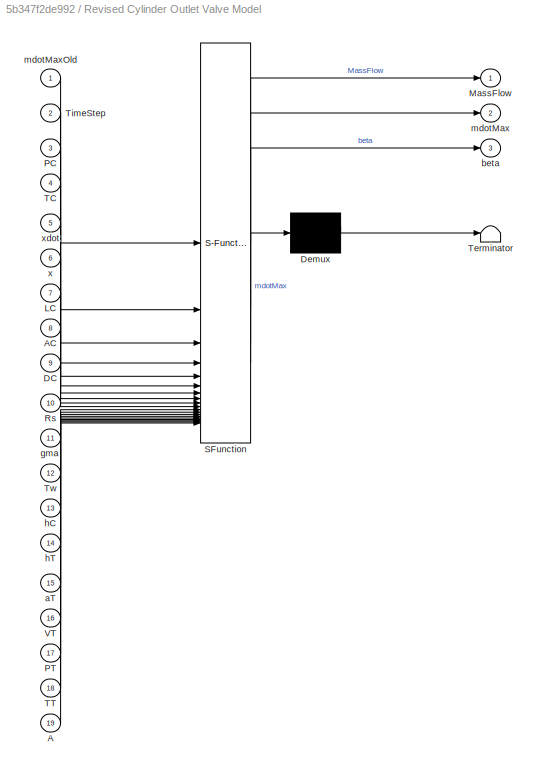
BLOCK [SubSystem] Revised Cylinder Outlet Valve Model
  ErrorFcn = Stateflow.Translate.translate
  MinAlgLoopOccurrences = on
  PermitHierarchicalResolution = ExplicitOnly
  SFBlockType = MATLAB Function
BLOCK [Demux] Revised Cylinder Outlet Valve Model/ Demux 
  Outputs = 1
BLOCK [S-Function] Revised Cylinder Outlet Valve Model/ SFunction 
  EnableBusSupport = on
  FunctionName = sf_sfun
  PortCounts = [19 4]
  SFcnIsStateOwnerBlock = off
  SFunctionDeploymentMode = off
  Tag = Stateflow S-Function 9
BLOCK [Terminator] Revised Cylinder Outlet Valve Model/ Terminator 
BLOCK [Inport] Revised Cylinder Outlet Valve Model/A
  Port = 19
BLOCK [Inport] Revised Cylinder Outlet Valve Model/AC
  Port = 8
BLOCK [Inport] Revised Cylinder Outlet Valve Model/DC
  Port = 9
BLOCK [Inport] Revised Cylinder Outlet Valve Model/LC
  Port = 7
BLOCK [Outport] Revised Cylinder Outlet Valve Model/MassFlow
BLOCK [Inport] Revised Cylinder Outlet Valve Model/PC
  Port = 3
BLOCK [Inport] Revised Cylinder Outlet Valve Model/PT
  Port = 17
BLOCK [Inport] Revised Cylinder Outlet Valve Model/Rs
  Port = 10
BLOCK [Inport] Revised Cylinder Outlet Valve Model/TC
  Port = 4
BLOCK [Inport] Revised Cylinder Outlet Valve Model/TT
  Port = 18
BLOCK [Inport] Revised Cylinder Outlet Valve Model/TimeStep
  Port = 2
BLOCK [Inport] Revised Cylinder Outlet Valve Model/Tw
  Port = 12
BLOCK [Inport] Revised Cylinder Outlet Valve Model/VT
  Port = 16
BLOCK [Inport] Revised Cylinder Outlet Valve Model/aT
  Port = 15
BLOCK [Outport] Revised Cylinder Outlet Valve Model/beta
  Port = 3
BLOCK [Inport] Revised Cylinder Outlet Valve Model/gma
  Port = 11
BLOCK [Inport] Revised Cylinder Outlet Valve Model/hC
  Port = 13
BLOCK [Inport] Revised Cylinder Outlet Valve Model/hT
  Port = 14
BLOCK [Outport] Revised Cylinder Outlet Valve Model/mdotMax
  Port = 2
BLOCK [Inport] Revised Cylinder Outlet Valve Model/mdotMaxOld
BLOCK [Inport] Revised Cylinder Outlet Valve Model/x
  Port = 6
BLOCK [Inport] Revised Cylinder Outlet Valve Model/xdot
  Port = 5
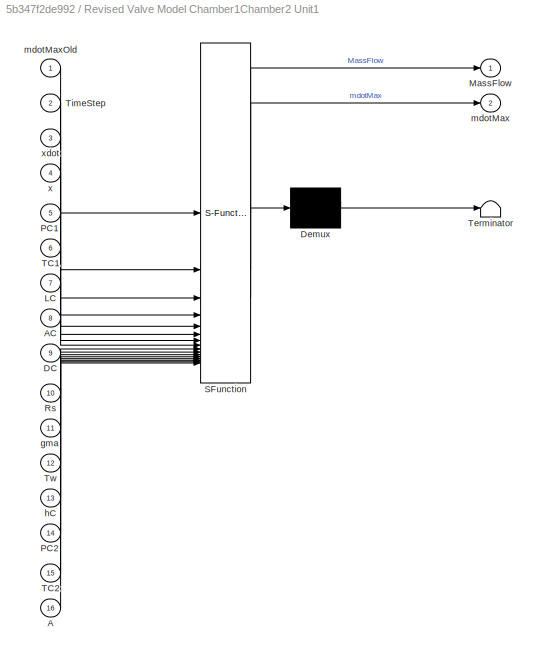
BLOCK [SubSystem] Revised Valve Model Chamber1Chamber2 Unit1
  ErrorFcn = Stateflow.Translate.translate
  MinAlgLoopOccurrences = on
  PermitHierarchicalResolution = ExplicitOnly
  SFBlockType = MATLAB Function
BLOCK [Demux] Revised Valve Model Chamber1Chamber2 Unit1/ Demux 
  Outputs = 1
BLOCK [S-Function] Revised Valve Model Chamber1Chamber2 Unit1/ SFunction 
  EnableBusSupport = on
  FunctionName = sf_sfun
  PortCounts = [16 3]
  SFcnIsStateOwnerBlock = off
  SFunctionDeploymentMode = off
  Tag = Stateflow S-Function 12
BLOCK [Terminator] Revised Valve Model Chamber1Chamber2 Unit1/ Terminator 
BLOCK [Inport] Revised Valve Model Chamber1Chamber2 Unit1/A
  Port = 16
BLOCK [Inport] Revised Valve Model Chamber1Chamber2 Unit1/AC
  Port = 8
BLOCK [Inport] Revised Valve Model Chamber1Chamber2 Unit1/DC
  Port = 9
BLOCK [Inport] Revised Valve Model Chamber1Chamber2 Unit1/LC
  Port = 7
BLOCK [Outport] Revised Valve Model Chamber1Chamber2 Unit1/MassFlow
BLOCK [Inport] Revised Valve Model Chamber1Chamber2 Unit1/PC1
  Port = 5
BLOCK [Inport] Revised Valve Model Chamber1Chamber2 Unit1/PC2
  Port = 14
BLOCK [Inport] Revised Valve Model Chamber1Chamber2 Unit1/Rs
  Port = 10
BLOCK [Inport] Revised Valve Model Chamber1Chamber2 Unit1/TC1
  Port = 6
BLOCK [Inport] Revised Valve Model Chamber1Chamber2 Unit1/TC2
  Port = 15
BLOCK [Inport] Revised Valve Model Chamber1Chamber2 Unit1/TimeStep
  Port = 2
BLOCK [Inport] Revised Valve Model Chamber1Chamber2 Unit1/Tw
  Port = 12
BLOCK [Inport] Revised Valve Model Chamber1Chamber2 Unit1/gma
  Port = 11
BLOCK [Inport] Revised Valve Model Chamber1Chamber2 Unit1/hC
  Port = 13
BLOCK [Outport] Revised Valve Model Chamber1Chamber2 Unit1/mdotMax
  Port = 2
BLOCK [Inport] Revised Valve Model Chamber1Chamber2 Unit1/mdotMaxOld
BLOCK [Inport] Revised Valve Model Chamber1Chamber2 Unit1/x
  Port = 4
BLOCK [Inport] Revised Valve Model Chamber1Chamber2 Unit1/xdot
  Port = 3
BLOCK [SubSystem] Revised Valve Model Inlet Unit1
  ErrorFcn = Stateflow.Translate.translate
  MinAlgLoopOccurrences = on
  PermitHierarchicalResolution = ExplicitOnly
  SFBlockType = MATLAB Function
BLOCK [Demux] Revised Valve Model Inlet Unit1/ Demux 
  Outputs = 1
BLOCK [S-Function] Revised Valve Model Inlet Unit1/ SFunction 
  EnableBusSupport = on
  FunctionName = sf_sfun
  PortCounts = [16 3]
  SFcnIsStateOwnerBlock = off
  SFunctionDeploymentMode = off
  Tag = Stateflow S-Function 11
BLOCK [Terminator] Revised Valve Model Inlet Unit1/ Terminator 
BLOCK [Inport] Revised Valve Model Inlet Unit1/A
  Port = 15
BLOCK [Inport] Revised Valve Model Inlet Unit1/AC
  Port = 8
BLOCK [Inport] Revised Valve Model Inlet Unit1/DC
  Port = 9
BLOCK [Inport] Revised Valve Model Inlet Unit1/LC
  Port = 7
BLOCK [Outport] Revised Valve Model Inlet Unit1/MassFlow
BLOCK [Inport] Revised Valve Model Inlet Unit1/PC1
  Port = 3
BLOCK [Inport] Revised Valve Model Inlet Unit1/Pamb
  Port = 16
BLOCK [Inport] Revised Valve Model Inlet Unit1/Rs
  Port = 10
BLOCK [Inport] Revised Valve Model Inlet Unit1/TC1
  Port = 4
BLOCK [Inport] Revised Valve Model Inlet Unit1/Tamb
  Port = 14
BLOCK [Inport] Revised Valve Model Inlet Unit1/TimeStep
  Port = 2
BLOCK [Inport] Revised Valve Model Inlet Unit1/Tw
  Port = 12
BLOCK [Inport] Revised Valve Model Inlet Unit1/gma
  Port = 11
BLOCK [Inport] Revised Valve Model Inlet Unit1/hC
  Port = 13
BLOCK [Outport] Revised Valve Model Inlet Unit1/mdotMax
  Port = 2
BLOCK [Inport] Revised Valve Model Inlet Unit1/mdotMaxOld
BLOCK [Inport] Revised Valve Model Inlet Unit1/x
  Port = 6
BLOCK [Inport] Revised Valve Model Inlet Unit1/xdot
  Port = 5
BLOCK [SubSystem] Revised Valve Tank Outlet
  ErrorFcn = Stateflow.Translate.translate
  MinAlgLoopOccurrences = on
  PermitHierarchicalResolution = ExplicitOnly
  SFBlockType = MATLAB Function
BLOCK [Demux] Revised Valve Tank Outlet/ Demux 
  Outputs = 1
BLOCK [S-Function] Revised Valve Tank Outlet/ SFunction 
  EnableBusSupport = on
  FunctionName = sf_sfun
  PortCounts = [14 4]
  SFcnIsStateOwnerBlock = off
  SFunctionDeploymentMode = off
  Tag = Stateflow S-Function 10
BLOCK [Terminator] Revised Valve Tank Outlet/ Terminator 
BLOCK [Inport] Revised Valve Tank Outlet/A
  Port = 14
BLOCK [Outport] Revised Valve Tank Outlet/MassFlow
BLOCK [Inport] Revised Valve Tank Outlet/PT
  Port = 3
BLOCK [Inport] Revised Valve Tank Outlet/Pcrack
  Port = 11
BLOCK [Inport] Revised Valve Tank Outlet/Rs
  Port = 5
BLOCK [Inport] Revised Valve Tank Outlet/TC
  Port = 12
BLOCK [Inport] Revised Valve Tank Outlet/TT
  Port = 4
BLOCK [Inport] Revised Valve Tank Outlet/TimeStep
  Port = 2
BLOCK [Inport] Revised Valve Tank Outlet/Tw
  Port = 7
BLOCK [Inport] Revised Valve Tank Outlet/VT
  Port = 9
BLOCK [Inport] Revised Valve Tank Outlet/aT
  Port = 10
BLOCK [Outport] Revised Valve Tank Outlet/beta
  Port = 3
BLOCK [Inport] Revised Valve Tank Outlet/gma
  Port = 6
BLOCK [Inport] Revised Valve Tank Outlet/hT
  Port = 8
BLOCK [Inport] Revised Valve Tank Outlet/mDotIn
  Port = 13
BLOCK [Outport] Revised Valve Tank Outlet/mdotMax
  Port = 2
BLOCK [Inport] Revised Valve Tank Outlet/mdotMaxOld
BLOCK [Saturate] Saturation
  LowerLimit = -AOE.Unit1.Cylinder.CoulombFrictionLimit
  UpperLimit = AOE.Unit1.Cylinder.CoulombFrictionLimit
BLOCK [Selector] Selector
  IndexOptions = Index vector (dialog)
  Indices = 3
  InputPortWidth = 6
  OutputSizes = 1
BLOCK [Selector] Selector1
  IndexOptions = Index vector (dialog)
  Indices = 3
  InputPortWidth = 6
  OutputSizes = 1
BLOCK [Reference] Spar  REF=WECSim_Lib_Body_Elements/Rigid Body
  AttributesFormatString = %<body>
  SourceBlock = WECSim_Lib_Body_Elements/Rigid Body
  SourceType = Rigid Body
BLOCK [Sum] Sum
  Inputs = +-
  NameLocation = right
BLOCK [Sum] Sum1
  IconShape = rectangular
  Inputs = -+
BLOCK [Sum] Sum2
  Inputs = -+
  NameLocation = left
BLOCK [Sum] Sum3
  Inputs = +|-
  NameLocation = right
BLOCK [Sum] Sum6
  IconShape = rectangular
  NameLocation = top
BLOCK [Scope] Tank Air Mass Unit1
  Floating = off
  NameLocation = right
  NumInputPorts = 1
  ScopeSpecificationString = Simulink.scopes.TimeScopeBlockCfg('CurrentConfiguration', extmgr.ConfigurationSet(extmgr.Configuration('Core','General UI',true,'FigureColor',[0.156862745098039 0.156862745098039 0.156862745098039]),extmgr.Configuration('Core','Source UI',true),extmgr.Configuration('Sources','WiredSimulink',true,'DataLoggingVariableName','TankMass','DataLoggingSaveFormat','Array','DataLoggingDecimation','1','DataL...<+2864ch>
BLOCK [Scope] Tank Air Mass change rate Unit1
  Floating = off
  NumInputPorts = 1
  ScopeSpecificationString = Simulink.scopes.TimeScopeBlockCfg('CurrentConfiguration', extmgr.ConfigurationSet(extmgr.Configuration('Core','General UI',true,'FigureColor',[0.156862745098039 0.156862745098039 0.156862745098039]),extmgr.Configuration('Core','Source UI',true),extmgr.Configuration('Sources','WiredSimulink',true,'DataLoggingVariableName','ScopeData23','DataLoggingSaveFormat','Array','DataLoggingDecimation','1','Da...<+2858ch>
BLOCK [Scope] Temp Chamber1 Unit1
  Floating = off
  NumInputPorts = 1
  ScopeSpecificationString = Simulink.scopes.TimeScopeBlockCfg('CurrentConfiguration', extmgr.ConfigurationSet(extmgr.Configuration('Core','General UI',true,'FigureColor',[0.156862745098039 0.156862745098039 0.156862745098039]),extmgr.Configuration('Core','Source UI',true),extmgr.Configuration('Sources','WiredSimulink',true,'DataLoggingVariableName','T_C1','DataLoggingSaveFormat','Array','DataLoggingDecimation','1','DataLoggi...<+2861ch>
BLOCK [Scope] Temp Chamber2 Unit1
  Floating = off
  NumInputPorts = 1
  ScopeSpecificationString = Simulink.scopes.TimeScopeBlockCfg('CurrentConfiguration', extmgr.ConfigurationSet(extmgr.Configuration('Core','General UI',true,'FigureColor',[0.156862745098039 0.156862745098039 0.156862745098039]),extmgr.Configuration('Core','Source UI',true),extmgr.Configuration('Sources','WiredSimulink',true,'DataLoggingVariableName','T_C2','DataLoggingSaveFormat','Array','DataLoggingDecimation','1','DataLoggi...<+2875ch>
BLOCK [Scope] Temp Tank Unit1
  Floating = off
  NumInputPorts = 1
  ScopeSpecificationString = Simulink.scopes.TimeScopeBlockCfg('CurrentConfiguration', extmgr.ConfigurationSet(extmgr.Configuration('Core','General UI',true,'FigureColor',[0.156862745098039 0.156862745098039 0.156862745098039]),extmgr.Configuration('Core','Source UI',true),extmgr.Configuration('Sources','WiredSimulink',true,'DataLoggingVariableName','T_T','DataLoggingSaveFormat','Array','DataLoggingDecimation','1','DataLoggin...<+2870ch>
BLOCK [SubSystem] Temperature Chamber1 Box Unit1
  ErrorFcn = Stateflow.Translate.translate
  PermitHierarchicalResolution = ExplicitOnly
  SFBlockType = MATLAB Function
  TreatAsAtomicUnit = on
BLOCK [Demux] Temperature Chamber1 Box Unit1/ Demux 
  Outputs = 1
BLOCK [S-Function] Temperature Chamber1 Box Unit1/ SFunction 
  EnableBusSupport = on
  FunctionName = sf_sfun
  PortCounts = [4 2]
  SFcnIsStateOwnerBlock = off
  SFunctionDeploymentMode = off
  Tag = Stateflow S-Function 2
BLOCK [Terminator] Temperature Chamber1 Box Unit1/ Terminator 
BLOCK [Inport] Temperature Chamber1 Box Unit1/P
BLOCK [Inport] Temperature Chamber1 Box Unit1/Rs
  Port = 2
BLOCK [Outport] Temperature Chamber1 Box Unit1/T
BLOCK [Inport] Temperature Chamber1 Box Unit1/V
  Port = 3
BLOCK [Inport] Temperature Chamber1 Box Unit1/m
  Port = 4
BLOCK [SubSystem] Temperature Chamber2 Box Unit1
  ErrorFcn = Stateflow.Translate.translate
  MinAlgLoopOccurrences = on
  PermitHierarchicalResolution = ExplicitOnly
  SFBlockType = MATLAB Function
BLOCK [Demux] Temperature Chamber2 Box Unit1/ Demux 
  Outputs = 1
BLOCK [S-Function] Temperature Chamber2 Box Unit1/ SFunction 
  EnableBusSupport = on
  FunctionName = sf_sfun
  PortCounts = [4 2]
  SFcnIsStateOwnerBlock = off
  SFunctionDeploymentMode = off
  Tag = Stateflow S-Function 4
BLOCK [Terminator] Temperature Chamber2 Box Unit1/ Terminator 
BLOCK [Inport] Temperature Chamber2 Box Unit1/P
BLOCK [Inport] Temperature Chamber2 Box Unit1/Rs
  Port = 2
BLOCK [Outport] Temperature Chamber2 Box Unit1/T
BLOCK [Inport] Temperature Chamber2 Box Unit1/V
  Port = 3
BLOCK [Inport] Temperature Chamber2 Box Unit1/m
  Port = 4
BLOCK [SubSystem] Temperature Tank Box Unit1
  ErrorFcn = Stateflow.Translate.translate
  PermitHierarchicalResolution = ExplicitOnly
  SFBlockType = MATLAB Function
BLOCK [Demux] Temperature Tank Box Unit1/ Demux 
  Outputs = 1
BLOCK [S-Function] Temperature Tank Box Unit1/ SFunction 
  EnableBusSupport = on
  FunctionName = sf_sfun
  PortCounts = [4 2]
  SFcnIsStateOwnerBlock = off
  SFunctionDeploymentMode = off
  Tag = Stateflow S-Function 6
BLOCK [Terminator] Temperature Tank Box Unit1/ Terminator 
BLOCK [Inport] Temperature Tank Box Unit1/P
BLOCK [Inport] Temperature Tank Box Unit1/Rs
  Port = 2
BLOCK [Outport] Temperature Tank Box Unit1/T
BLOCK [Inport] Temperature Tank Box Unit1/V
  Port = 3
BLOCK [Inport] Temperature Tank Box Unit1/m
  Port = 4
BLOCK [From] TimeStep1
  GotoTag = TimeStep
BLOCK [From] TimeStep2
  GotoTag = TimeStep
BLOCK [From] TimeStep4
  GotoTag = TimeStep
BLOCK [ToWorkspace] To Workspace
  FixptAsFi = on
  MaxDataPoints = inf
  SampleTime = -1
  VariableName = Fh
BLOCK [ToWorkspace] To Workspace1
  FixptAsFi = on
  MaxDataPoints = inf
  SampleTime = -1
  VariableName = Fl
BLOCK [ToWorkspace] To Workspace2
  FixptAsFi = on
  MaxDataPoints = inf
  SampleTime = -1
  VariableName = PT
BLOCK [Scope] Total Reaction Force
  Floating = off
  NameLocation = right
  NumInputPorts = 1
  ScopeSpecificationString = Simulink.scopes.TimeScopeBlockCfg('CurrentConfiguration', extmgr.ConfigurationSet(extmgr.Configuration('Core','General UI',true),extmgr.Configuration('Core','Source UI',true),extmgr.Configuration('Sources','WiredSimulink',true,'DataLoggingVariableName','F_T','DataLoggingSaveFormat','Array'),extmgr.Configuration('Visuals','Time Domain',true,'SerializedDisplays',{struct('MinYLimReal','-1653591.91257...<+1610ch>
BLOCK [Reference] Translational PTO Actuation Force  REF=WECSim_Lib_PTOs/Translational PTO
Actuation Force
  AttributesFormatString = %<pto>
  NameLocation = right
  SourceBlock = WECSim_Lib_PTOs/Translational PTO\nActuation Force
  SourceType = PTO
BLOCK [UnitDelay] Unit Delay
  HasFrameUpgradeWarning = on
  NameLocation = right
  SampleTime = -1
BLOCK [UnitDelay] Unit Delay1
  HasFrameUpgradeWarning = on
  SampleTime = -1
BLOCK [UnitDelay] Unit Delay2
  HasFrameUpgradeWarning = on
  NameLocation = right
  SampleTime = -1
BLOCK [UnitDelay] Unit Delay3
  HasFrameUpgradeWarning = on
  NameLocation = right
  SampleTime = -1
BLOCK [UnitDelay] Unit Delay4
  HasFrameUpgradeWarning = on
  NameLocation = right
  SampleTime = -1
BLOCK [Scope] Vol Chamber1 Unit1
  Floating = off
  NumInputPorts = 1
  ScopeSpecificationString = Simulink.scopes.TimeScopeBlockCfg('CurrentConfiguration', extmgr.ConfigurationSet(extmgr.Configuration('Core','General UI',true,'FigureColor',[0.156862745098039 0.156862745098039 0.156862745098039]),extmgr.Configuration('Core','Source UI',true),extmgr.Configuration('Sources','WiredSimulink',true,'DataLoggingVariableName','ScopeData18','DataLoggingSaveFormat','Array','DataLoggingDecimation','1','Da...<+2863ch>
BLOCK [Scope] Vol Chamber2 Unit1
  Floating = off
  NumInputPorts = 1
  ScopeSpecificationString = Simulink.scopes.TimeScopeBlockCfg('CurrentConfiguration', extmgr.ConfigurationSet(extmgr.Configuration('Core','General UI',true,'FigureColor',[0.156862745098039 0.156862745098039 0.156862745098039]),extmgr.Configuration('Core','Source UI',true),extmgr.Configuration('Sources','WiredSimulink',true,'DataLoggingVariableName','ScopeData19','DataLoggingSaveFormat','Array','DataLoggingDecimation','1','Da...<+2871ch>
BLOCK [SubSystem] Volume Chamber1 Box Unit1
  ErrorFcn = Stateflow.Translate.translate
  PermitHierarchicalResolution = ExplicitOnly
  SFBlockType = MATLAB Function
  TreatAsAtomicUnit = on
BLOCK [Demux] Volume Chamber1 Box Unit1/ Demux 
  Outputs = 1
BLOCK [S-Function] Volume Chamber1 Box Unit1/ SFunction 
  EnableBusSupport = on
  FunctionName = sf_sfun
  PortCounts = [3 2]
  SFcnIsStateOwnerBlock = off
  SFunctionDeploymentMode = off
  Tag = Stateflow S-Function 7
BLOCK [Terminator] Volume Chamber1 Box Unit1/ Terminator 
BLOCK [Inport] Volume Chamber1 Box Unit1/A
  Port = 2
BLOCK [Inport] Volume Chamber1 Box Unit1/L
  Port = 3
BLOCK [Outport] Volume Chamber1 Box Unit1/V
BLOCK [Inport] Volume Chamber1 Box Unit1/x
BLOCK [SubSystem] Volume Chamber2 Box Unit1
  ErrorFcn = Stateflow.Translate.translate
  PermitHierarchicalResolution = ExplicitOnly
  SFBlockType = MATLAB Function
  TreatAsAtomicUnit = on
BLOCK [Demux] Volume Chamber2 Box Unit1/ Demux 
  Outputs = 1
BLOCK [S-Function] Volume Chamber2 Box Unit1/ SFunction 
  EnableBusSupport = on
  FunctionName = sf_sfun
  PortCounts = [3 2]
  SFcnIsStateOwnerBlock = off
  SFunctionDeploymentMode = off
  Tag = Stateflow S-Function 8
BLOCK [Terminator] Volume Chamber2 Box Unit1/ Terminator 
BLOCK [Inport] Volume Chamber2 Box Unit1/A
  Port = 2
BLOCK [Inport] Volume Chamber2 Box Unit1/L
  Port = 3
BLOCK [Outport] Volume Chamber2 Box Unit1/V
BLOCK [Inport] Volume Chamber2 Box Unit1/x
BLOCK [Scope] beta Cylinder Unit1
  Floating = off
  NumInputPorts = 1
  ScopeSpecificationString = Simulink.scopes.TimeScopeBlockCfg('CurrentConfiguration', extmgr.ConfigurationSet(extmgr.Configuration('Core','General UI',true,'FigureColor',[0.156862745098039 0.156862745098039 0.156862745098039]),extmgr.Configuration('Core','Source UI',true),extmgr.Configuration('Sources','WiredSimulink',true,'DataLoggingVariableName','ScopeData2','DataLoggingSaveFormat','Array','DataLoggingDecimation','1','Dat...<+2865ch>
BLOCK [Scope] beta Unit1
  Floating = off
  NumInputPorts = 1
  ScopeSpecificationString = Simulink.scopes.TimeScopeBlockCfg('CurrentConfiguration', extmgr.ConfigurationSet(extmgr.Configuration('Core','General UI',true,'FigureColor',[0.156862745098039 0.156862745098039 0.156862745098039]),extmgr.Configuration('Core','Source UI',true),extmgr.Configuration('Sources','WiredSimulink',true,'DataLoggingVariableName','ScopeData1','DataLoggingSaveFormat','Array','DataLoggingDecimation','1','Dat...<+2856ch>
BLOCK [Constant] cylinder equilibrium offset position1
  Value = AOE.Unit1.Chamber1.InitialPistonPosition
BLOCK [Constant] cylinder equilibrium offset position2
  Value = AOE.Unit1.Chamber2.InitialPistonPosition
BLOCK [Constant] cylinder equilibrium offset position3
  Value = AOE.Unit1.Chamber1.InitialPistonPosition
BLOCK [Constant] cylinder equilibrium offset position4
  Value = AOE.Unit1.Chamber1.InitialPistonPosition
BLOCK [Constant] cylinder equilibrium offset position5
  Value = AOE.Unit1.Chamber1.InitialPistonPosition
BLOCK [Constant] cylinder equilibrium offset position6
  Value = AOE.Unit1.Chamber2.InitialPistonPosition
BLOCK [Constant] cylinder initial offset
  Value = AOE.Unit1.Cylinder.InitialOffset
BLOCK [Constant] cylinder total Length
  NameLocation = top
  Value = AOE.Unit1.Cylinder.Length
BLOCK [Scope] joint F stop high Unit1
  Floating = off
  NameLocation = top
  NumInputPorts = 1
  ScopeSpecificationString = Simulink.scopes.TimeScopeBlockCfg('CurrentConfiguration', extmgr.ConfigurationSet(extmgr.Configuration('Core','General UI',true,'FigureColor',[0.156862745098039 0.156862745098039 0.156862745098039]),extmgr.Configuration('Core','Source UI',true),extmgr.Configuration('Sources','WiredSimulink',true,'DataLoggingVariableName','Fstop_High','DataLoggingSaveFormat','Array','DataLoggingDecimation','1','Dat...<+2900ch>
BLOCK [Scope] joint F stop low Unit1
  Floating = off
  NameLocation = top
  NumInputPorts = 1
  ScopeSpecificationString = Simulink.scopes.TimeScopeBlockCfg('CurrentConfiguration', extmgr.ConfigurationSet(extmgr.Configuration('Core','General UI',true,'FigureColor',[0.156862745098039 0.156862745098039 0.156862745098039]),extmgr.Configuration('Core','Source UI',true),extmgr.Configuration('Sources','WiredSimulink',true,'DataLoggingVariableName','Fstop_Low','DataLoggingSaveFormat','Array','DataLoggingDecimation','1','Data...<+2894ch>
BLOCK [Scope] joint position1
  Floating = off
  NameLocation = left
  NumInputPorts = 1
  ScopeSpecificationString = Simulink.scopes.TimeScopeBlockCfg('CurrentConfiguration', extmgr.ConfigurationSet(extmgr.Configuration('Core','General UI',true,'FigureColor',[0.156862745098039 0.156862745098039 0.156862745098039]),extmgr.Configuration('Core','Source UI',true),extmgr.Configuration('Sources','WiredSimulink',true,'DataLoggingVariableName','ScopeData5','DataLoggingSaveFormat','Array','DataLoggingDecimation','1','Dat...<+2872ch>
BLOCK [Scope] mdot Chamber1Chamber2 Unit1
  Floating = off
  NumInputPorts = 1
  ScopeSpecificationString = Simulink.scopes.TimeScopeBlockCfg('CurrentConfiguration', extmgr.ConfigurationSet(extmgr.Configuration('Core','General UI',true,'FigureColor',[0.156862745098039 0.156862745098039 0.156862745098039]),extmgr.Configuration('Core','Source UI',true),extmgr.Configuration('Sources','WiredSimulink',true,'DataLoggingVariableName','mDot_C1C2','DataLoggingSaveFormat','Array','DataLoggingDecimation','1','Data...<+2832ch>
BLOCK [Scope] mdot Cylinder Unit1
  Floating = off
  NumInputPorts = 1
  ScopeSpecificationString = Simulink.scopes.TimeScopeBlockCfg('CurrentConfiguration', extmgr.ConfigurationSet(extmgr.Configuration('Core','General UI',true,'FigureColor',[0.156862745098039 0.156862745098039 0.156862745098039]),extmgr.Configuration('Core','Source UI',true),extmgr.Configuration('Sources','WiredSimulink',true,'DataLoggingVariableName','mDot_C2T','DataLoggingSaveFormat','Array','DataLoggingDecimation','1','DataL...<+2887ch>
BLOCK [Scope] mdot Inlet Unit1
  Floating = off
  NumInputPorts = 1
  ScopeSpecificationString = C++SS(StrPVP('Location','[6, 84, 621, 559]'),StrPVP('Open','off'),MxPVP('AxesTitles',54,'struct(''axes1'',''%<SignalLabel>'')'),MxPVP('ScopeGraphics',57,'struct(''FigureColor'',''[0.156862745098039 0.156862745098039 0.156862745098039]'',''AxesColor'',''[0 0 0]'',''AxesTickColor'',''[0.686274509803922 0.686274509803922 0.686274509803922]'',''LineColors'',''[1 1 0;1 0 1;0 1 1;1 0 0;0 1 0;0 0 1]'',''...<+365ch>
BLOCK [Scope] mdot Max Chamber1Chamber2 Unit1
  Floating = off
  NumInputPorts = 1
  ScopeSpecificationString = Simulink.scopes.TimeScopeBlockCfg('CurrentConfiguration', extmgr.ConfigurationSet(extmgr.Configuration('Core','General UI',true,'FigureColor',[0.156862745098039 0.156862745098039 0.156862745098039]),extmgr.Configuration('Core','Source UI',true),extmgr.Configuration('Sources','WiredSimulink',true,'DataLoggingVariableName','ScopeData2','DataLoggingSaveFormat','Array','DataLoggingDecimation','1','Dat...<+2876ch>
BLOCK [Scope] mdot Max Cylinder Unit1
  Floating = off
  NumInputPorts = 1
  ScopeSpecificationString = Simulink.scopes.TimeScopeBlockCfg('CurrentConfiguration', extmgr.ConfigurationSet(extmgr.Configuration('Core','General UI',true,'FigureColor',[0.156862745098039 0.156862745098039 0.156862745098039]),extmgr.Configuration('Core','Source UI',true),extmgr.Configuration('Sources','WiredSimulink',true,'DataLoggingVariableName','ScopeData1','DataLoggingSaveFormat','Array','DataLoggingDecimation','1','Dat...<+2868ch>
BLOCK [Scope] mdot max Inlet Unit1
  Floating = off
  NumInputPorts = 1
  ScopeSpecificationString = C++SS(StrPVP('Location','[44, 177, 648, 674]'),StrPVP('Open','off'),MxPVP('AxesTitles',54,'struct(''axes1'',''%<SignalLabel>'')'),MxPVP('ScopeGraphics',57,'struct(''FigureColor'',''[0.156862745098039 0.156862745098039 0.156862745098039]'',''AxesColor'',''[0 0 0]'',''AxesTickColor'',''[0.686274509803922 0.686274509803922 0.686274509803922]'',''LineColors'',''[1 1 0;1 0 1;0 1 1;1 0 0;0 1 0;0 0 1]'',...<+367ch>
BLOCK [Constant] override2
  Value = AOE.Unit1.OutletTankCheckValve.CrackPressure
BLOCK [Scope] piston position Unit1
  Floating = off
  NameLocation = right
  NumInputPorts = 1
  ScopeSpecificationString = Simulink.scopes.TimeScopeBlockCfg('CurrentConfiguration', extmgr.ConfigurationSet(extmgr.Configuration('Core','General UI',true,'FigureColor',[0.156862745098039 0.156862745098039 0.156862745098039]),extmgr.Configuration('Core','Source UI',true),extmgr.Configuration('Sources','WiredSimulink',true,'DataLogging',true,'DataLoggingVariableName','x','DataLoggingSaveFormat','Array','DataLoggingDecimation...<+2912ch>
BLOCK [Scope] piston velocity Unit1
  Floating = off
  NameLocation = left
  NumInputPorts = 1
  ScopeSpecificationString = Simulink.scopes.TimeScopeBlockCfg('CurrentConfiguration', extmgr.ConfigurationSet(extmgr.Configuration('Core','General UI',true,'FigureColor',[0.156862745098039 0.156862745098039 0.156862745098039]),extmgr.Configuration('Core','Source UI',true),extmgr.Configuration('Sources','WiredSimulink',true,'DataLoggingVariableName','xDot','DataLoggingSaveFormat','Array','DataLoggingDecimation','1','DataLoggi...<+2850ch>
BLOCK [Constant] tempAmb1
  Value = AOE.AtmTemperature
BLOCK [Constant] tempAmb2
  Value = AOE.AtmTemperature
ANNOTATION (root): Inlet Piston valve
ANNOTATION (root): Outlet Piston Chamber 1 Valve
ANNOTATION (root): Outlet Piston Valve
ANNOTATION (root): Outlet Tank Valve
ANNOTATION (root): Useful Power
LINE Add1:1 -> Goto TimeStep:1
LINE Add2:1 -> Pressure Difference Cyl. Unit1:1
LINE Add3:1 -> Pressure Difference Tank Unit1:1
NET Add4:1 -> Goto x Unit1:1, Pressure Chamber1 Box Unit1:4, Pressure Chamber2 Box Unit1:4, Revised Valve Model Chamber1Chamber2 Unit1:4, Sum6:2, Volume Chamber1 Box Unit1:1, Volume Chamber2 Box Unit1:1, piston position Unit1:1
LINE Add7:1 -> Pressure Difference Chamb. 1 Unit1:1
NET Add8:1 -> Gain4:1, Total Reaction Force:1
LINE Add9:1 -> Pressure Difference Inlet Unit1:1
NET Atmospheric pressure1:1 -> Add9:2, Revised Valve Model Inlet Unit1:16
LINE Atmospheric pressure2:1 -> Determining Useful Energy:8
LINE Bus Selector:1 -> Gain3:1
LINE Bus Selector:2 -> Gain2:1
LINE Clock1:1 -> Unit Delay1:1
LINE Clock:1 -> Add1:1
LINE Constant10:1 -> Determining Useful Energy:6
LINE Constant11:1 -> Determining Useful Energy:5
LINE Constant14:1 -> Revised Cylinder Outlet Valve Model:13
LINE Constant16:1 -> Pressure Chamber2 Box Unit1:8
LINE Constant17:1 -> Pressure Chamber2 Box Unit1:10
LINE Constant18:1 -> Discrete-Time Integrator2:2
LINE Constant19:1 -> Discrete-Time Integrator:2
LINE Constant1:1 -> Revised Valve Model Chamber1Chamber2 Unit1:13
LINE Constant20:1 -> Discrete-Time Integrator12:2
LINE Constant21:1 -> Revised Valve Tank Outlet:14
LINE Constant22:1 -> Revised Valve Tank Outlet:5
LINE Constant23:1 -> Revised Valve Tank Outlet:6
LINE Constant24:1 -> Pressure Chamber2 Box Unit1:14
LINE Constant25:1 -> Discrete-Time Integrator10:2
LINE Constant26:1 -> Pressure Chamber2 Box Unit1:13
LINE Constant27:1 -> Pressure Chamber2 Box Unit1:11
LINE Constant28:1 -> Pressure Chamber2 Box Unit1:12
LINE Constant29:1 -> Pressure Chamber2 Box Unit1:9
LINE Constant2:1 -> Product3:1
LINE Constant30:1 -> Pressure Tank Box Unit1:5
LINE Constant31:1 -> Pressure Tank Box Unit1:6
LINE Constant32:1 -> Pressure Tank Box Unit1:7
LINE Constant33:1 -> Discrete-Time Integrator1:2
LINE Constant34:1 -> Pressure Tank Box Unit1:8
LINE Constant35:1 -> Temperature Tank Box Unit1:2
LINE Constant37:1 -> Pressure Chamber1 Box Unit1:14
LINE Constant38:1 -> Pressure Tank Box Unit1:10
LINE Constant39:1 -> Revised Valve Model Chamber1Chamber2 Unit1:10
LINE Constant3:1 -> Temperature Chamber1 Box Unit1:2
LINE Constant40:1 -> Revised Valve Model Chamber1Chamber2 Unit1:11
LINE Constant41:1 -> Revised Valve Model Chamber1Chamber2 Unit1:8
LINE Constant42:1 -> Revised Valve Model Chamber1Chamber2 Unit1:12
LINE Constant43:1 -> Revised Cylinder Outlet Valve Model:10
LINE Constant44:1 -> Sum6:1
LINE Constant46:1 -> Volume Chamber1 Box Unit1:2
LINE Constant47:1 -> Revised Cylinder Outlet Valve Model:11
LINE Constant48:1 -> Temperature Tank Box Unit1:3
LINE Constant49:1 -> Volume Chamber2 Box Unit1:2
LINE Constant4:1 -> Temperature Chamber2 Box Unit1:2
LINE Constant50:1 -> Pressure Tank Box Unit1:9
LINE Constant51:1 -> Revised Cylinder Outlet Valve Model:8
LINE Constant52:1 -> Revised Cylinder Outlet Valve Model:12
LINE Constant53:1 -> Revised Cylinder Outlet Valve Model:14
LINE Constant54:1 -> Revised Cylinder Outlet Valve Model:15
LINE Constant55:1 -> Revised Cylinder Outlet Valve Model:16
LINE Constant56:1 -> Revised Valve Model Inlet Unit1:13
LINE Constant57:1 -> Revised Valve Tank Outlet:7
LINE Constant58:1 -> Revised Valve Tank Outlet:8
LINE Constant59:1 -> Revised Valve Tank Outlet:10
LINE Constant5:1 -> Pressure Chamber1 Box Unit1:11
LINE Constant60:1 -> Revised Valve Tank Outlet:9
LINE Constant61:1 -> Revised Valve Model Inlet Unit1:10
LINE Constant62:1 -> Revised Valve Model Inlet Unit1:11
LINE Constant63:1 -> Revised Valve Model Inlet Unit1:8
LINE Constant64:1 -> Revised Valve Model Inlet Unit1:12
LINE Constant65:1 -> Revised Valve Model Inlet Unit1:15
LINE Constant66:1 -> Revised Cylinder Outlet Valve Model:19
LINE Constant67:1 -> Revised Valve Model Chamber1Chamber2 Unit1:16
LINE Constant6:1 -> Pressure Chamber1 Box Unit1:12
LINE Constant7:1 -> Pressure Chamber1 Box Unit1:9
LINE Constant8:1 -> Pressure Chamber1 Box Unit1:13
LINE Constant9:1 -> Discrete-Time Integrator11:2
LINE Coulomb & Viscous Friction Unit1:1 -> Gain:1
LINE Cyl D1:1 -> Revised Cylinder Outlet Valve Model:9
LINE Cyl D2:1 -> Revised Valve Model Inlet Unit1:9
LINE Cyl D3:1 -> Revised Valve Model Chamber1Chamber2 Unit1:9
LINE Cyl D:1 -> Pressure Chamber1 Box Unit1:10
LINE Determining Useful Energy:1 -> Exergy Unit1:1
LINE Determining Useful Energy:2 -> Energy Unit1:1
NET Discrete-Time Integrator10:1 -> Product3:2, Tank Air Mass Unit1:1, Temperature Tank Box Unit1:4
NET Discrete-Time Integrator11:1 -> Air Mass Chamber1 Unit1:1, Assertion:1, Temperature Chamber1 Box Unit1:4
NET Discrete-Time Integrator12:1 -> Assertion2:1, Goto PC2 Unit1:1, Pressure Chamber2 Box Unit1:1, Pressure Chamber2 Unit1:1, Sum1:2, Temperature Chamber2 Box Unit1:1
NET Discrete-Time Integrator1:1 -> Add3:2, Determining Useful Energy:2, Goto6:1, Pressure Tank Unit1:1, Revised Valve Tank Outlet:3, Temperature Tank Box Unit1:1, To Workspace2:1
NET Discrete-Time Integrator2:1 -> Air Mass Chamber2 Unit1:1, Assertion3:1, Temperature Chamber2 Box Unit1:4
NET Discrete-Time Integrator:1 -> Assertion1:1, Goto PC1 Unit1:1, Pressure Chamber1 Box Unit1:1, Pressure Chamber1 Unit1:1, Revised Valve Model Chamber1Chamber2 Unit1:5, Sum1:1, Temperature Chamber1 Box Unit1:1
LINE Endstop Forces Unit1/High end limit:1 -> Endstop Forces Unit1/Sum5:2
LINE Endstop Forces Unit1/High endstop switch2:1 -> Endstop Forces Unit1/F_stop_hi:1
LINE Endstop Forces Unit1/High endstop switch3:1 -> Endstop Forces Unit1/F_stop_lo:1
LINE Endstop Forces Unit1/Low end limit:1 -> Endstop Forces Unit1/Sum8:1
NET Endstop Forces Unit1/Spring2:1 -> Endstop Forces Unit1/Fk2:1, Endstop Forces Unit1/Sum7:2
NET Endstop Forces Unit1/Spring3:1 -> Endstop Forces Unit1/Fk1:1, Endstop Forces Unit1/Sum9:1
LINE Endstop Forces Unit1/Sum5:1 -> Endstop Forces Unit1/Sum6:2
NET Endstop Forces Unit1/Sum6:1 -> Endstop Forces Unit1/High endstop switch2:2, Endstop Forces Unit1/Spring2:1
LINE Endstop Forces Unit1/Sum7:1 -> Endstop Forces Unit1/High endstop switch2:1
NET Endstop Forces Unit1/Sum8:1 -> Endstop Forces Unit1/High endstop switch3:2, Endstop Forces Unit1/Spring3:1
LINE Endstop Forces Unit1/Sum9:1 -> Endstop Forces Unit1/High endstop switch3:1
LINE Endstop Forces Unit1/Total length:1 -> Endstop Forces Unit1/Sum5:1
NET Endstop Forces Unit1/const3:1 -> Endstop Forces Unit1/High endstop switch2:3, Endstop Forces Unit1/High endstop switch3:3
NET Endstop Forces Unit1/endstop damping1:1 -> Endstop Forces Unit1/Fc:1, Endstop Forces Unit1/Sum7:1, Endstop Forces Unit1/Sum9:2
NET Endstop Forces Unit1/x(t):1 -> Endstop Forces Unit1/Sum6:1, Endstop Forces Unit1/Sum8:2
LINE Endstop Forces Unit1/xdot(t):1 -> Endstop Forces Unit1/endstop damping1:1
NET Endstop Forces Unit1:1 -> Add8:3, To Workspace:1, joint F stop high Unit1:1
NET Endstop Forces Unit1:2 -> Add8:2, To Workspace1:1, joint F stop low Unit1:1
LINE Energy:1 -> Mech_Energy Unit1:1
LINE From PC1 Unit1:1 -> Revised Valve Model Inlet Unit1:3
LINE From PC1, 1 Unit1:1 -> Add9:1
LINE From PC1, 2 Unit1:1 -> Add7:2
LINE From PC2 Unit1:1 -> Revised Valve Model Chamber1Chamber2 Unit1:14
LINE From PC2, 1 Unit1:1 -> Add7:1
LINE From PC2, 2 Unit1:1 -> Add2:2
LINE From PC2, 3 Unit1:1 -> Revised Cylinder Outlet Valve Model:3
LINE From PT Unit1:1 -> Add2:1
LINE From PT, 1 Unit1:1 -> Revised Cylinder Outlet Valve Model:17
LINE From TC1 Unit1:1 -> Revised Valve Model Inlet Unit1:4
LINE From TC2 Unit1:1 -> Revised Valve Model Chamber1Chamber2 Unit1:15
LINE From TC2, 1 Unit1:1 -> Revised Cylinder Outlet Valve Model:4
LINE From TC2, 2 Unit1:1 -> Revised Valve Tank Outlet:12
LINE From TT, 1 Unit1:1 -> Revised Cylinder Outlet Valve Model:18
LINE From x Unit1:1 -> Revised Valve Model Inlet Unit1:6
LINE From x, 3 Unit1:1 -> Revised Cylinder Outlet Valve Model:6
LINE From xDot Unit1:1 -> Revised Valve Model Inlet Unit1:5
LINE From xDot, 3 Unit1:1 -> Revised Cylinder Outlet Valve Model:5
LINE From16:1 -> Revised Valve Model Inlet Unit1:2
NET Gain1:1 -> Add8:4, Mech_FTO Unit1:1, Product2:2
LINE Gain2:1 -> Selector1:1
LINE Gain3:1 -> Selector:1
LINE Gain4:1 -> Translational PTO Actuation Force:1
LINE Gain:1 -> Saturation:1
NET Pressure Chamber1 Box Unit1:1 -> Discrete-Time Integrator:1, Pdot Chamber1 Unit1:1
NET Pressure Chamber2 Box Unit1:1 -> Discrete-Time Integrator12:1, Pdot Chamber2 Unit1:1
NET Pressure Tank Box Unit1:1 -> Discrete-Time Integrator1:1, Pdot Tank Unit1:1
NET Product2:1 -> Energy:1, Mech_PTO Unit1:1
NET Product3:1 -> Density:1, Determining Useful Energy:4
NET Revised Cylinder Outlet Valve Model:1 -> Pressure Chamber2 Box Unit1:7, Pressure Tank Box Unit1:3, Revised Valve Tank Outlet:13, Sum2:1, Sum3:1, mdot Cylinder Unit1:1
NET Revised Cylinder Outlet Valve Model:2 -> Unit Delay2:1, mdot Max Cylinder Unit1:1
LINE Revised Cylinder Outlet Valve Model:3 -> beta Cylinder Unit1:1
NET Revised Valve Model Chamber1Chamber2 Unit1:1 -> Pressure Chamber1 Box Unit1:7, Pressure Chamber2 Box Unit1:6, Sum2:2, Sum:2, mdot Chamber1Chamber2 Unit1:1
NET Revised Valve Model Chamber1Chamber2 Unit1:2 -> Unit Delay3:1, mdot Max Chamber1Chamber2 Unit1:1
NET Revised Valve Model Inlet Unit1:1 -> Pressure Chamber1 Box Unit1:6, Sum:1, mdot Inlet Unit1:1
NET Revised Valve Model Inlet Unit1:2 -> Unit Delay4:1, mdot max Inlet Unit1:1
NET Revised Valve Tank Outlet:1 ->  mdot Tank Unit1:1, Determining Useful Energy:3, Pressure Tank Box Unit1:4, Sum3:2
NET Revised Valve Tank Outlet:2 ->  mdot max Tank Unit1:1, Unit Delay:1
LINE Revised Valve Tank Outlet:3 -> beta Unit1:1
NET Saturation:1 -> Add8:1, PTO Friction Unit1:1
LINE Selector1:1 -> Add4:1
NET Selector:1 -> Coulomb & Viscous Friction Unit1:1, Endstop Forces Unit1:3, Goto xDot Unit1:1, Pressure Chamber1 Box Unit1:3, Pressure Chamber2 Box Unit1:3, Product2:1, Revised Valve Model Chamber1Chamber2 Unit1:3, piston velocity Unit1:1
NET Sum1:1 -> Chamber pressure potential Unit1:1, Gain1:1
NET Sum2:1 -> Air Mass change rate Chamber2 Unit1:1, Discrete-Time Integrator2:1
NET Sum3:1 -> Discrete-Time Integrator10:1, Tank Air Mass change rate Unit1:1
NET Sum6:1 -> Endstop Forces Unit1:1, joint position1:1
NET Sum:1 -> Air Mass change rate Chamber1 Unit1:1, Discrete-Time Integrator11:1
NET Temperature Chamber1 Box Unit1:1 -> Goto TC1 Unit1:1, Pressure Chamber1 Box Unit1:2, Pressure Chamber2 Box Unit1:5, Revised Valve Model Chamber1Chamber2 Unit1:6, Temp Chamber1 Unit1:1
NET Temperature Chamber2 Box Unit1:1 -> Goto TC2 Unit1:1, Pressure Chamber2 Box Unit1:2, Pressure Tank Box Unit1:2, Temp Chamber2 Unit1:1
NET Temperature Tank Box Unit1:1 -> Determining Useful Energy:1, Goto TT Unit1:1, Pressure Tank Box Unit1:1, Revised Valve Tank Outlet:4, Temp Tank Unit1:1
LINE TimeStep1:1 -> Revised Valve Model Chamber1Chamber2 Unit1:2
LINE TimeStep2:1 -> Revised Cylinder Outlet Valve Model:2
LINE TimeStep4:1 -> Revised Valve Tank Outlet:2
LINE Translational PTO Actuation Force:1 -> Bus Selector:1
LINE Unit Delay1:1 -> Add1:2
LINE Unit Delay2:1 -> Revised Cylinder Outlet Valve Model:1
LINE Unit Delay3:1 -> Revised Valve Model Chamber1Chamber2 Unit1:1
LINE Unit Delay4:1 -> Revised Valve Model Inlet Unit1:1
LINE Unit Delay:1 -> Revised Valve Tank Outlet:1
NET Volume Chamber1 Box Unit1:1 -> Assertion4:1, Temperature Chamber1 Box Unit1:3, Vol Chamber1 Unit1:1
NET Volume Chamber2 Box Unit1:1 -> Assertion5:1, Temperature Chamber2 Box Unit1:3, Vol Chamber2 Unit1:1
LINE cylinder equilibrium offset position1:1 -> Volume Chamber1 Box Unit1:3
LINE cylinder equilibrium offset position2:1 -> Volume Chamber2 Box Unit1:3
LINE cylinder equilibrium offset position3:1 -> Revised Valve Model Chamber1Chamber2 Unit1:7
LINE cylinder equilibrium offset position4:1 -> Pressure Chamber1 Box Unit1:8
LINE cylinder equilibrium offset position5:1 -> Revised Valve Model Inlet Unit1:7
LINE cylinder equilibrium offset position6:1 -> Revised Cylinder Outlet Valve Model:7
LINE cylinder initial offset:1 -> Add4:2
LINE cylinder total Length:1 -> Endstop Forces Unit1:2
NET override2:1 -> Add3:1, Revised Valve Tank Outlet:11
NET tempAmb1:1 -> Pressure Chamber1 Box Unit1:5, Revised Valve Model Inlet Unit1:14
LINE tempAmb2:1 -> Determining Useful Energy:7
PLINE Float:RConn1 -- Translational PTO Actuation Force:RConn1
PLINE Floating (6DOF):LConn1 -- Global Reference Frame:RConn1
PNET net1: Floating (6DOF):RConn1 -- Spar:RConn1 -- Translational PTO Actuation Force:LConn1
note: NET lines group one-source signal fan-out (src -> all destinations, sorted); 1:1 wires keep LINE; PNET lines group multi-terminal physical nets as a canonical sorted terminal list (undirected conserving connections); 2-terminal nets keep the pairwise PLINE form
CHART Temperature Tank Box Unit1 states=1 transitions=1
  STATE_LABEL 'eML_blk_kernel()'
  STATE_LABEL 'SCRIPT:\nfunction T = fcn(P,Rs,V,m)\n\nT = P*V/(m*Rs);'
CHART Volume Chamber1
 Box Unit1 states=1 transitions=1
  STATE_LABEL 'eML_blk_kernel()'
  STATE_LABEL 'SCRIPT:\nfunction V = fcn(x,A,L)\nV = A*(-x +L);\n\n\n\n\n\n\n\n'
CHART Volume Chamber2
 Box Unit1 states=1 transitions=1
  STATE_LABEL 'eML_blk_kernel()'
  STATE_LABEL 'SCRIPT:\nfunction V = fcn(x,A,L)\n\nV = A*(x +L);'
CHART Revised Cylinder Outlet Valve Model states=1 transitions=1
  STATE_LABEL 'eML_blk_kernel()'
  STATE_LABEL 'SCRIPT:\nfunction [MassFlow, mdotMax, beta]   = fcn(mdotMaxOld, TimeStep, PC, TC,xdot ,x, LC,AC, DC,Rs,gma,Tw,hC, hT, aT, VT, PT, TT, A)\n\nif PC >= PT\n    beta = PT/PC;\n    \n    if beta > 0.999\n        beta = 0.999;\n    end\n    \n    if beta > 0.5283\n        mdotMax = A*PC*sqrt(abs((2*gma/((gma-1)*Rs*TC))*((beta)^(2/gma) - (beta)^((gma+1)/gma)))); %subsonic\n    else\n        mdotMax = 0.0404*PC*A/sqrt...<+1787ch>'
CHART Revised Valve Tank Outlet states=1 transitions=1
  STATE_LABEL 'eML_blk_kernel()'
  STATE_LABEL 'SCRIPT:\nfunction [MassFlow, mdotMax, beta]   = fcn(mdotMaxOld, TimeStep, PT, TT ,Rs,gma,Tw,hT, VT, aT, Pcrack, TC, mDotIn, A)\n\n%Determine Maximum Mass Flow Rate\n\n%A is orifice area\n\nif PT >= Pcrack\n    beta = Pcrack/PT;\n    \n    %This prevents instabilities as Beta approaches 1\n    if beta > 0.999\n        beta = 0.999;\n    end\n    \n    if beta > 0.5283\n        mdotMax = A*PT*sqrt(abs((2*gma/((gma-...<+716ch>'
CHART Revised Valve Model Inlet Unit1 states=1 transitions=1
  STATE_LABEL 'eML_blk_kernel()'
  STATE_LABEL 'SCRIPT:\nfunction [MassFlow, mdotMax]   = fcn(mdotMaxOld, TimeStep, PC1, TC1,xdot ,x, LC,AC, DC,Rs,gma,Tw,hC, Tamb, A, Pamb)\n\nif Pamb >= PC1\n    beta = PC1/Pamb;\n    \n    if beta > 0.999\n        beta = 0.999;\n    end\n    \n    if beta > 0.5283\n        mdotMax = A*Pamb*sqrt(abs((2*gma/((gma-1)*Rs*Tamb))*((beta)^(2/gma) - (beta)^((gma+1)/gma)))); %subsonic\n    else\n        mdotMax = 0.0404*Pamb*A/sqrt...<+698ch>'
CHART Revised Valve Model Chamber1Chamber2
Unit1 states=1 transitions=1
  STATE_LABEL 'eML_blk_kernel()'
  STATE_LABEL 'SCRIPT:\nfunction [MassFlow, mdotMax]   = fcn(mdotMaxOld, TimeStep, xdot ,x,PC1, TC1, LC,AC, DC,Rs,gma,Tw,hC, PC2, TC2, A)\n\nif PC1 >= PC2\n    beta = PC2/PC1;\n    \n    if beta > 0.999\n        beta = 0.999;\n    end\n    \n    if beta > 0.5283\n        mdotMax = A*PC1*sqrt(abs((2*gma/((gma-1)*Rs*TC1))*((beta)^(2/gma) - (beta)^((gma+1)/gma)))); %subsonic\n    else\n        mdotMax = 0.0404*PC1*A/sqrt(TC1); ...<+923ch>'
CHART Pressure Chamber1 Box Unit1 states=1 transitions=1
  STATE_LABEL 'eML_blk_kernel()'
  STATE_LABEL 'SCRIPT:\nfunction Pdot = fcn(P, T,xdot ,x, Tin1, mdot1,mdot3,L,A, D,Rs,gma,Tw,h)\n\nV = A*(-x +L);\na = pi*D*(-x +L) + 2*A; %heat transfer area\n\nPdot = (-1*gma*P*(-xdot)*A - (gma-1)*h*a*(T-Tw) + gma*Rs*Tin1*mdot1 - gma*Rs*T*mdot3)/V;'
CHART Pressure Tank Box Unit1 states=1 transitions=1
  STATE_LABEL 'eML_blk_kernel()'
  STATE_LABEL 'SCRIPT:\nfunction Pdot  = fcn(T, Tin, mdot1,mdot2,Rs,gma,h, a, V,Tw)\n\nPdot = (-(gma-1)*h*a*(T-Tw) + gma*Rs*Tin*mdot1 - gma*Rs*T*mdot2)/V;'
CHART Determining Useful Energy states=1 transitions=1
  STATE_LABEL 'eML_blk_kernel()'
  STATE_LABEL 'SCRIPT:\nfunction [Exergy, Power]   = fcn(T, P, mDot, Density, Cp, Rs, Tamb, Pamb)\n    \n%Determining Flow Exergy\nFlow_Exergy = Cp*Tamb*( (T/Tamb) - 1 - log(T/Tamb) ) + Rs*Tamb*log(P/Pamb);\n\nExergy = Flow_Exergy*mDot; %This has the units of Watts\n\n%Determining Energy of Output\nPower = mDot*(P - Pamb)/Density;\n\nend\n\n'
CHART Temperature Chamber1
 Box Unit1 states=1 transitions=1
  STATE_LABEL 'eML_blk_kernel()'
  STATE_LABEL 'SCRIPT:\nfunction T = fcn(P,Rs,V,m)\nT = P*V/(m*Rs);'
CHART Pressure Chamber2 Box Unit1 states=1 transitions=1
  STATE_LABEL 'eML_blk_kernel()'
  STATE_LABEL 'SCRIPT:\nfunction Pdot = fcn(P, T,xdot ,x, Tin1, mdot1,mdot3,L,A, D,Rs,gma,Tw,h)\n\nV = A * (x +L);\na = pi*D*(x +L) + 2*A; %heat transfer area\n\nPdot = (-1*gma*P*(xdot)*A - (gma-1)*h*a*(T-Tw) + gma*Rs*Tin1*mdot1 - gma*Rs*T*mdot3)/V;'
CHART Temperature Chamber2 Box Unit1 states=1 transitions=1
  STATE_LABEL 'eML_blk_kernel()'
  STATE_LABEL 'SCRIPT:\nfunction T = fcn(P,Rs,V,m)\n\nT = P*V/(m*Rs);'
CHART  states=0 transitions=0
CHART  states=0 transitions=0
CHART  states=0 transitions=0
CHART  states=0 transitions=0
CHART  states=0 transitions=0
CHART  states=0 transitions=0
CHART  states=0 transitions=0
CHART  states=0 transitions=0
CHART  states=0 transitions=0
CHART  states=0 transitions=0
CHART  states=0 transitions=0
CHART  states=0 transitions=0
CHART  states=0 transitions=0
